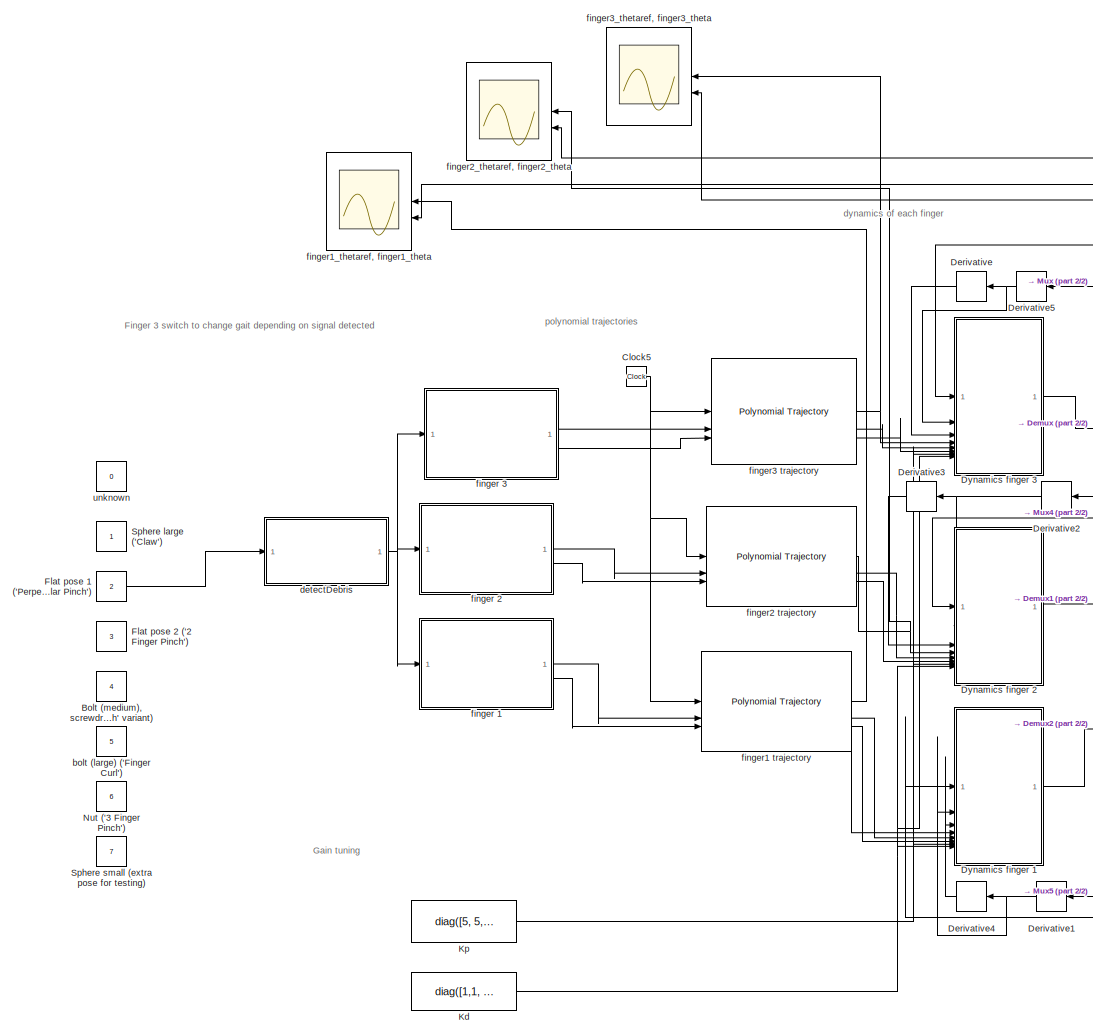
[diagram: root canvas - part 1/2, left side, full height]
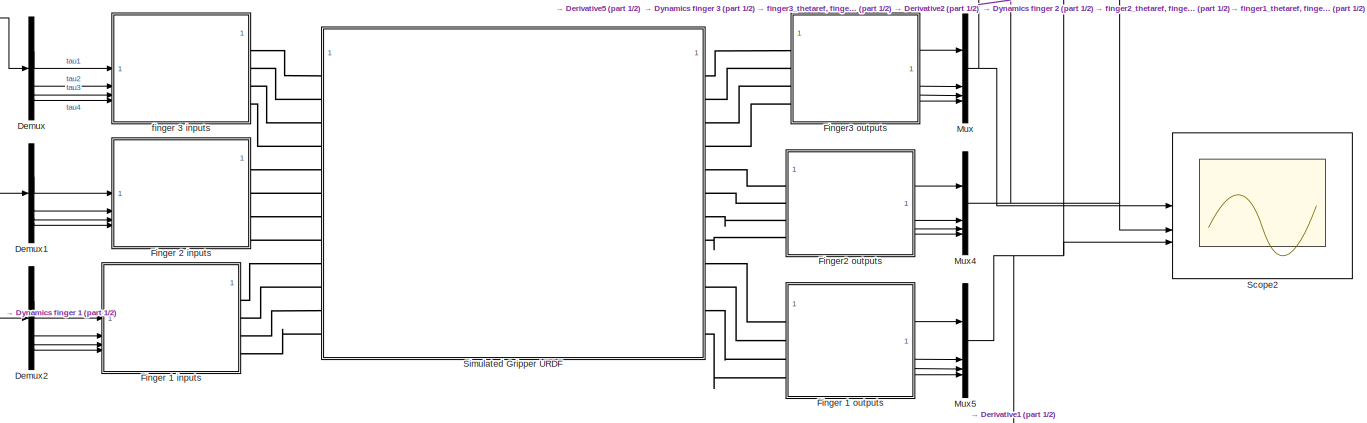
[diagram: root canvas - part 2/2, middle right region]
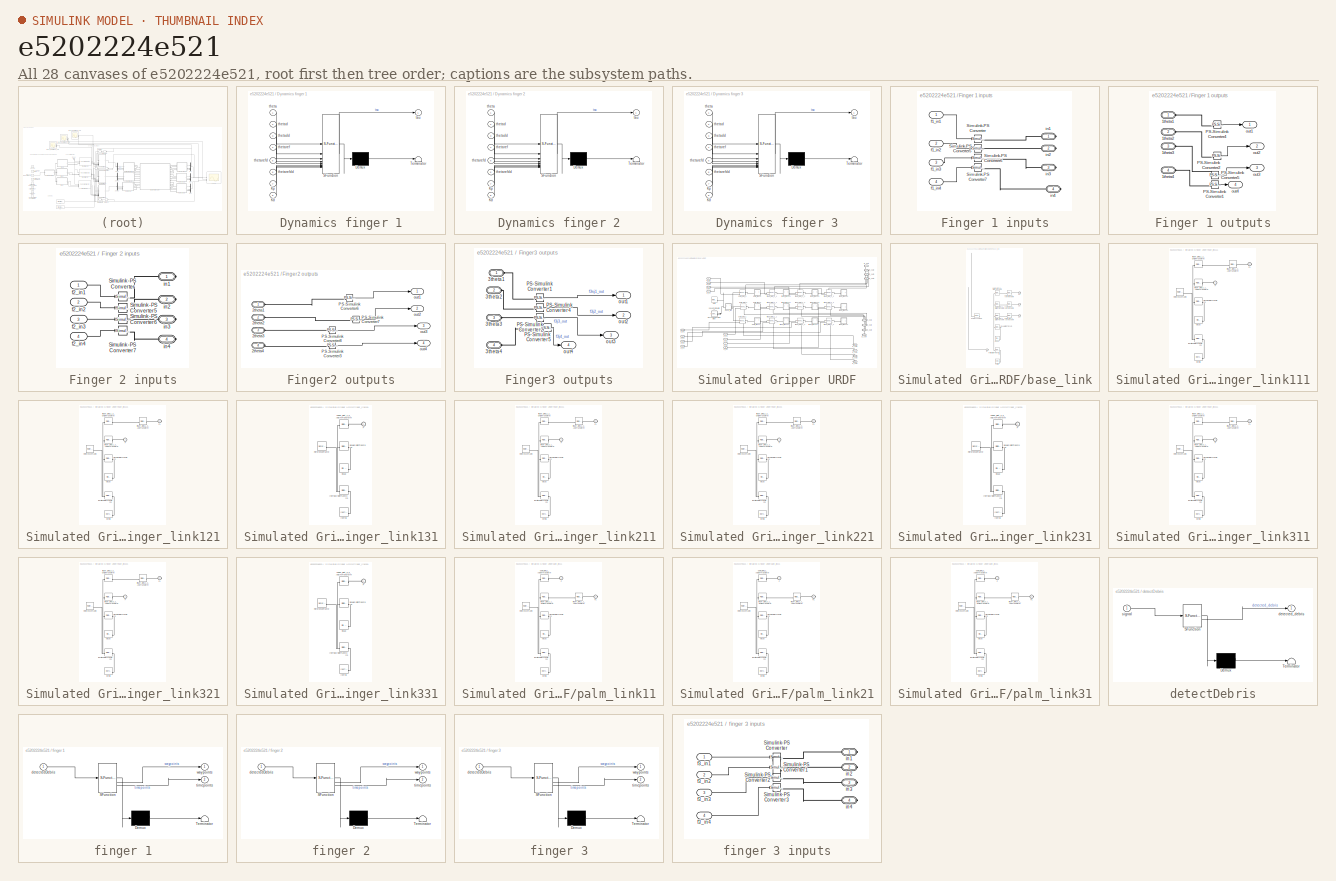
[diagram: thumbnail index - all 28 canvases of the model, root first then tree order]
MODEL slx_e5202224e521
KIND model
CONFIG AbsTol = auto
CONFIG EnableMultiTasking = on
CONFIG FixedStep = auto
CONFIG MaxStep = auto
CONFIG MinStep = auto
CONFIG RelTol = 1e-3
CONFIG SampleTimeConstraint = Unconstrained
CONFIG SolverName = daessc
CONFIG StartTime = 0.0
CONFIG StopTime = 10.0
BLOCK [Constant] Bolt (medium), screwdriver ('3 Finger Pinch' variant)
  Value = 4
BLOCK [Clock] Clock5
BLOCK [Demux] Demux
BLOCK [Demux] Demux1
BLOCK [Demux] Demux2
BLOCK [Derivative] Derivative
BLOCK [Derivative] Derivative1
BLOCK [Derivative] Derivative2
BLOCK [Derivative] Derivative3
BLOCK [Derivative] Derivative4
BLOCK [Derivative] Derivative5
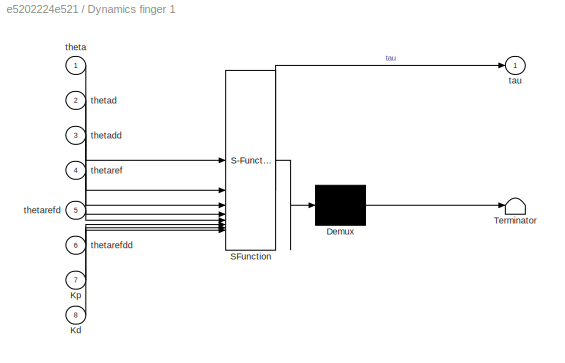
BLOCK [SubSystem] Dynamics finger 1
  ErrorFcn = Stateflow.Translate.translate
  PermitHierarchicalResolution = ExplicitOnly
  SFBlockType = MATLAB Function
  TreatAsAtomicUnit = on
BLOCK [Demux] Dynamics finger 1/ Demux 
  Outputs = 1
BLOCK [S-Function] Dynamics finger 1/ SFunction 
  EnableBusSupport = on
  FunctionName = sf_sfun
  PortCounts = [8 2]
  SFcnIsStateOwnerBlock = off
  SFunctionDeploymentMode = off
  Tag = Stateflow S-Function 6
BLOCK [Terminator] Dynamics finger 1/ Terminator 
BLOCK [Inport] Dynamics finger 1/Kd
  Port = 8
BLOCK [Inport] Dynamics finger 1/Kp
  Port = 7
BLOCK [Outport] Dynamics finger 1/tau
BLOCK [Inport] Dynamics finger 1/theta
BLOCK [Inport] Dynamics finger 1/thetad
  Port = 2
BLOCK [Inport] Dynamics finger 1/thetadd
  Port = 3
BLOCK [Inport] Dynamics finger 1/thetaref
  Port = 4
BLOCK [Inport] Dynamics finger 1/thetarefd
  Port = 5
BLOCK [Inport] Dynamics finger 1/thetarefdd
  Port = 6
BLOCK [SubSystem] Dynamics finger 2
  ErrorFcn = Stateflow.Translate.translate
  PermitHierarchicalResolution = ExplicitOnly
  SFBlockType = MATLAB Function
  TreatAsAtomicUnit = on
BLOCK [Demux] Dynamics finger 2/ Demux 
  Outputs = 1
BLOCK [S-Function] Dynamics finger 2/ SFunction 
  EnableBusSupport = on
  FunctionName = sf_sfun
  PortCounts = [8 2]
  SFcnIsStateOwnerBlock = off
  SFunctionDeploymentMode = off
  Tag = Stateflow S-Function 2
BLOCK [Terminator] Dynamics finger 2/ Terminator 
BLOCK [Inport] Dynamics finger 2/Kd
  Port = 8
BLOCK [Inport] Dynamics finger 2/Kp
  Port = 7
BLOCK [Outport] Dynamics finger 2/tau
BLOCK [Inport] Dynamics finger 2/theta
BLOCK [Inport] Dynamics finger 2/thetad
  Port = 2
BLOCK [Inport] Dynamics finger 2/thetadd
  Port = 3
BLOCK [Inport] Dynamics finger 2/thetaref
  Port = 4
BLOCK [Inport] Dynamics finger 2/thetarefd
  Port = 5
BLOCK [Inport] Dynamics finger 2/thetarefdd
  Port = 6
BLOCK [SubSystem] Dynamics finger 3
  ErrorFcn = Stateflow.Translate.translate
  PermitHierarchicalResolution = ExplicitOnly
  SFBlockType = MATLAB Function
  TreatAsAtomicUnit = on
BLOCK [Demux] Dynamics finger 3/ Demux 
  Outputs = 1
BLOCK [S-Function] Dynamics finger 3/ SFunction 
  EnableBusSupport = on
  FunctionName = sf_sfun
  PortCounts = [8 2]
  SFcnIsStateOwnerBlock = off
  SFunctionDeploymentMode = off
  Tag = Stateflow S-Function 3
BLOCK [Terminator] Dynamics finger 3/ Terminator 
BLOCK [Inport] Dynamics finger 3/Kd
  Port = 8
BLOCK [Inport] Dynamics finger 3/Kp
  Port = 7
BLOCK [Outport] Dynamics finger 3/tau
BLOCK [Inport] Dynamics finger 3/theta
BLOCK [Inport] Dynamics finger 3/thetad
  Port = 2
BLOCK [Inport] Dynamics finger 3/thetadd
  Port = 3
BLOCK [Inport] Dynamics finger 3/thetaref
  Port = 4
BLOCK [Inport] Dynamics finger 3/thetarefd
  Port = 5
BLOCK [Inport] Dynamics finger 3/thetarefdd
  Port = 6
BLOCK [SubSystem] Finger 1 inputs
BLOCK [Reference] Finger 1 inputs/Simulink-PS Converter  REF=nesl_utility/Simulink-PS
Converter
  SourceBlock = nesl_utility/Simulink-PS\nConverter
  SourceType = Simulink-PS\nConverter
BLOCK [Reference] Finger 1 inputs/Simulink-PS Converter5  REF=nesl_utility/Simulink-PS
Converter
  SourceBlock = nesl_utility/Simulink-PS\nConverter
  SourceType = Simulink-PS\nConverter
BLOCK [Reference] Finger 1 inputs/Simulink-PS Converter6  REF=nesl_utility/Simulink-PS
Converter
  SourceBlock = nesl_utility/Simulink-PS\nConverter
  SourceType = Simulink-PS\nConverter
BLOCK [Reference] Finger 1 inputs/Simulink-PS Converter7  REF=nesl_utility/Simulink-PS
Converter
  SourceBlock = nesl_utility/Simulink-PS\nConverter
  SourceType = Simulink-PS\nConverter
BLOCK [Inport] Finger 1 inputs/f1_in1
BLOCK [Inport] Finger 1 inputs/f1_in2
  Port = 2
BLOCK [Inport] Finger 1 inputs/f1_in3
  Port = 3
BLOCK [Inport] Finger 1 inputs/f1_in4
  Port = 4
BLOCK [PMIOPort] Finger 1 inputs/in1
  Side = Right
BLOCK [PMIOPort] Finger 1 inputs/in2
  Port = 2
  Side = Right
BLOCK [PMIOPort] Finger 1 inputs/in3
  Port = 3
  Side = Right
BLOCK [PMIOPort] Finger 1 inputs/in4
  Port = 4
  Side = Right
BLOCK [SubSystem] Finger 1 outputs
BLOCK [PMIOPort] Finger 1 outputs/1theta1
  Side = Left
BLOCK [PMIOPort] Finger 1 outputs/1theta2
  Port = 2
  Side = Left
BLOCK [PMIOPort] Finger 1 outputs/1theta3
  Port = 3
  Side = Left
BLOCK [PMIOPort] Finger 1 outputs/1theta4
  Port = 4
  Side = Left
BLOCK [Reference] Finger 1 outputs/PS-Simulink Converter1  REF=nesl_utility/PS-Simulink
Converter
  SourceBlock = nesl_utility/PS-Simulink\nConverter
  SourceType = PS-Simulink\nConverter
BLOCK [Reference] Finger 1 outputs/PS-Simulink Converter2  REF=nesl_utility/PS-Simulink
Converter
  SourceBlock = nesl_utility/PS-Simulink\nConverter
  SourceType = PS-Simulink\nConverter
BLOCK [Reference] Finger 1 outputs/PS-Simulink Converter4  REF=nesl_utility/PS-Simulink
Converter
  SourceBlock = nesl_utility/PS-Simulink\nConverter
  SourceType = PS-Simulink\nConverter
BLOCK [Reference] Finger 1 outputs/PS-Simulink Converter5  REF=nesl_utility/PS-Simulink
Converter
  SourceBlock = nesl_utility/PS-Simulink\nConverter
  SourceType = PS-Simulink\nConverter
BLOCK [Outport] Finger 1 outputs/out1
BLOCK [Outport] Finger 1 outputs/out2
  Port = 2
BLOCK [Outport] Finger 1 outputs/out3
  Port = 3
BLOCK [Outport] Finger 1 outputs/out4
  Port = 4
BLOCK [SubSystem] Finger 2 inputs
BLOCK [Reference] Finger 2 inputs/Simulink-PS Converter  REF=nesl_utility/Simulink-PS
Converter
  SourceBlock = nesl_utility/Simulink-PS\nConverter
  SourceType = Simulink-PS\nConverter
BLOCK [Reference] Finger 2 inputs/Simulink-PS Converter5  REF=nesl_utility/Simulink-PS
Converter
  SourceBlock = nesl_utility/Simulink-PS\nConverter
  SourceType = Simulink-PS\nConverter
BLOCK [Reference] Finger 2 inputs/Simulink-PS Converter6  REF=nesl_utility/Simulink-PS
Converter
  SourceBlock = nesl_utility/Simulink-PS\nConverter
  SourceType = Simulink-PS\nConverter
BLOCK [Reference] Finger 2 inputs/Simulink-PS Converter7  REF=nesl_utility/Simulink-PS
Converter
  SourceBlock = nesl_utility/Simulink-PS\nConverter
  SourceType = Simulink-PS\nConverter
BLOCK [Inport] Finger 2 inputs/f2_in1
BLOCK [Inport] Finger 2 inputs/f2_in2
  Port = 2
BLOCK [Inport] Finger 2 inputs/f2_in3
  Port = 3
BLOCK [Inport] Finger 2 inputs/f2_in4
  Port = 4
BLOCK [PMIOPort] Finger 2 inputs/in1
  Side = Right
BLOCK [PMIOPort] Finger 2 inputs/in2
  Port = 2
  Side = Right
BLOCK [PMIOPort] Finger 2 inputs/in3
  Port = 3
  Side = Right
BLOCK [PMIOPort] Finger 2 inputs/in4
  Port = 4
  Side = Right
BLOCK [SubSystem] Finger2 outputs
BLOCK [PMIOPort] Finger2 outputs/2theta1
  Side = Left
BLOCK [PMIOPort] Finger2 outputs/2theta2
  Port = 2
  Side = Left
BLOCK [PMIOPort] Finger2 outputs/2theta3
  Port = 3
  Side = Left
BLOCK [PMIOPort] Finger2 outputs/2theta4
  Port = 4
  Side = Left
BLOCK [Reference] Finger2 outputs/PS-Simulink Converter3  REF=nesl_utility/PS-Simulink
Converter
  SourceBlock = nesl_utility/PS-Simulink\nConverter
  SourceType = PS-Simulink\nConverter
BLOCK [Reference] Finger2 outputs/PS-Simulink Converter6  REF=nesl_utility/PS-Simulink
Converter
  SourceBlock = nesl_utility/PS-Simulink\nConverter
  SourceType = PS-Simulink\nConverter
BLOCK [Reference] Finger2 outputs/PS-Simulink Converter7  REF=nesl_utility/PS-Simulink
Converter
  SourceBlock = nesl_utility/PS-Simulink\nConverter
  SourceType = PS-Simulink\nConverter
BLOCK [Reference] Finger2 outputs/PS-Simulink Converter8  REF=nesl_utility/PS-Simulink
Converter
  SourceBlock = nesl_utility/PS-Simulink\nConverter
  SourceType = PS-Simulink\nConverter
BLOCK [Outport] Finger2 outputs/out1
BLOCK [Outport] Finger2 outputs/out2
  Port = 2
BLOCK [Outport] Finger2 outputs/out3
  Port = 3
BLOCK [Outport] Finger2 outputs/out4
  Port = 4
BLOCK [SubSystem] Finger3 outputs
BLOCK [PMIOPort] Finger3 outputs/3theta1
  Side = Left
BLOCK [PMIOPort] Finger3 outputs/3theta2
  Port = 2
  Side = Left
BLOCK [PMIOPort] Finger3 outputs/3theta3
  Port = 3
  Side = Left
BLOCK [PMIOPort] Finger3 outputs/3theta4
  Port = 4
  Side = Left
BLOCK [Reference] Finger3 outputs/PS-Simulink Converter1  REF=nesl_utility/PS-Simulink
Converter
  SourceBlock = nesl_utility/PS-Simulink\nConverter
  SourceType = PS-Simulink\nConverter
BLOCK [Reference] Finger3 outputs/PS-Simulink Converter2  REF=nesl_utility/PS-Simulink
Converter
  SourceBlock = nesl_utility/PS-Simulink\nConverter
  SourceType = PS-Simulink\nConverter
BLOCK [Reference] Finger3 outputs/PS-Simulink Converter4  REF=nesl_utility/PS-Simulink
Converter
  SourceBlock = nesl_utility/PS-Simulink\nConverter
  SourceType = PS-Simulink\nConverter
BLOCK [Reference] Finger3 outputs/PS-Simulink Converter5  REF=nesl_utility/PS-Simulink
Converter
  SourceBlock = nesl_utility/PS-Simulink\nConverter
  SourceType = PS-Simulink\nConverter
BLOCK [Outport] Finger3 outputs/out1
BLOCK [Outport] Finger3 outputs/out2
  Port = 2
BLOCK [Outport] Finger3 outputs/out3
  Port = 3
BLOCK [Outport] Finger3 outputs/out4
  Port = 4
BLOCK [Constant] Flat pose 1 ('Perpendcular Pinch')
  Value = 2
BLOCK [Constant] Flat pose 2 ('2 Finger Pinch')
  Value = 3
BLOCK [Constant] Kd
  Value = diag([1,1, 1, 1])
BLOCK [Constant] Kp
  Value = diag([5, 5, 5, 5])
BLOCK [Mux] Mux
  DisplayOption = bar
BLOCK [Mux] Mux4
  DisplayOption = bar
BLOCK [Mux] Mux5
  DisplayOption = bar
BLOCK [Constant] Nut ('3 Finger Pinch')
  Value = 6
BLOCK [Scope] Scope2
  Floating = off
  NumInputPorts = 3
  ScopeSpecificationString = Simulink.scopes.TimeScopeBlockCfg('CurrentConfiguration', extmgr.ConfigurationSet(extmgr.Configuration('Core','General UI',true),extmgr.Configuration('Core','Source UI',true),extmgr.Configuration('Sources','WiredSimulink',true,'DataLoggingVariableName','ScopeData2'),extmgr.Configuration('Visuals','Time Domain',true,'SerializedDisplays',{struct('MinYLimReal','-0.42592','MaxYLimReal','1.79902','YLab...<+3552ch>
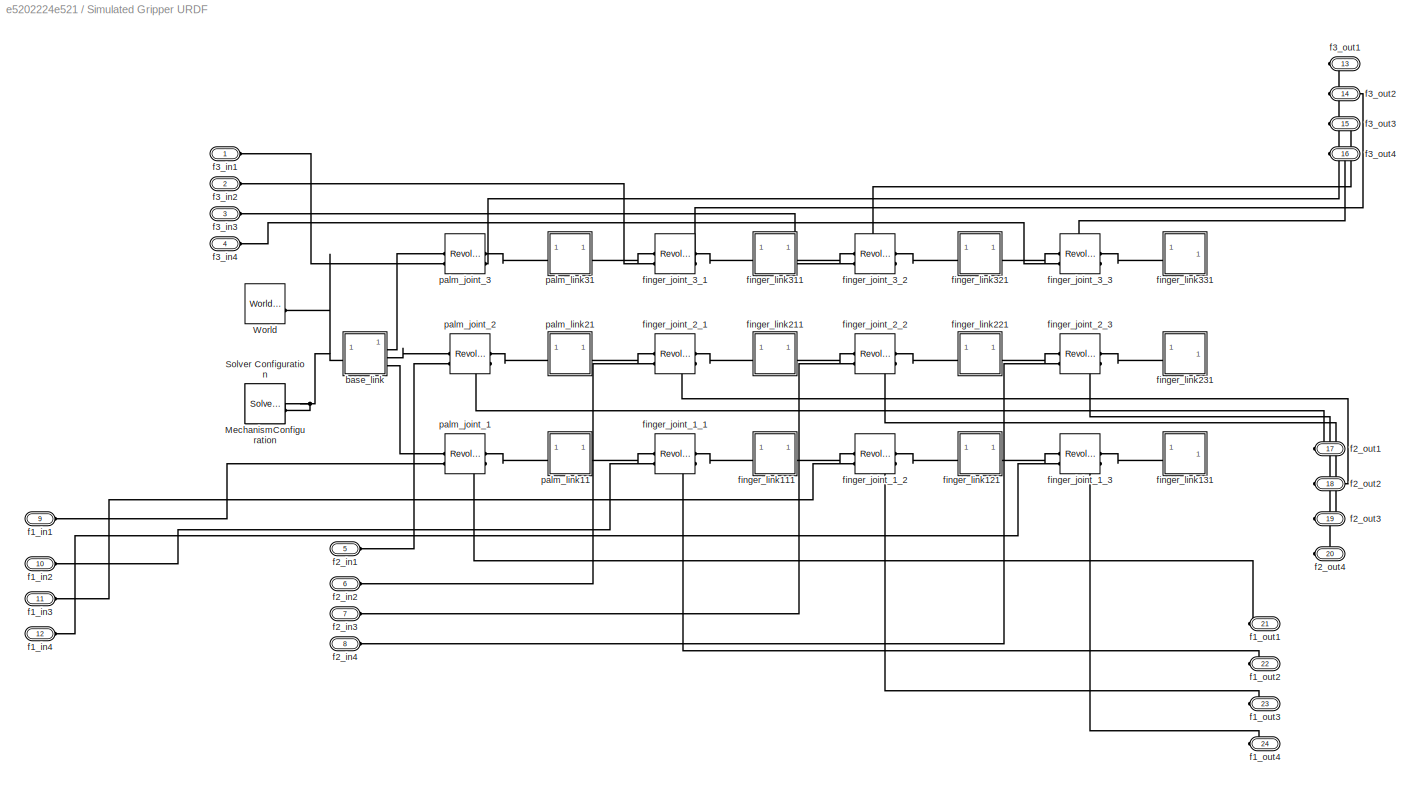
BLOCK [SubSystem] Simulated Gripper URDF
  NameLocation = top
BLOCK [Reference] Simulated Gripper URDF/MechanismConfiguration  REF=sm_lib/Utilities/Mechanism
Configuration
  SourceBlock = sm_lib/Utilities/Mechanism\nConfiguration
  SourceType = Mechanism\nConfiguration
BLOCK [Reference] Simulated Gripper URDF/Solver Configuration  REF=nesl_utility/Solver
Configuration
  SourceBlock = nesl_utility/Solver\nConfiguration
  SourceType = Solver\nConfiguration
BLOCK [Reference] Simulated Gripper URDF/World  REF=sm_lib/Frames and
Transforms/World Frame
  SourceBlock = sm_lib/Frames and\nTransforms/World Frame
  SourceType = World Frame
BLOCK [SubSystem] Simulated Gripper URDF/base_link
BLOCK [PMIOPort] Simulated Gripper URDF/base_link/F
  Side = Left
BLOCK [PMIOPort] Simulated Gripper URDF/base_link/F1
  Port = 4
  Side = Right
BLOCK [PMIOPort] Simulated Gripper URDF/base_link/F2
  Port = 3
  Side = Right
BLOCK [PMIOPort] Simulated Gripper URDF/base_link/F3
  Port = 2
  Side = Right
BLOCK [Reference] Simulated Gripper URDF/base_link/Inertia  REF=sm_lib/Body Elements/Inertia
  SourceBlock = sm_lib/Body Elements/Inertia
  SourceType = Inertia
BLOCK [Reference] Simulated Gripper URDF/base_link/InertiaOriginTransform  REF=sm_lib/Frames and
Transforms/Rigid
Transform
  SourceBlock = sm_lib/Frames and\nTransforms/Rigid\nTransform
  SourceType = Rigid\nTransform
BLOCK [Reference] Simulated Gripper URDF/base_link/ReferenceFrame  REF=sm_lib/Frames and
Transforms/Reference
Frame
  SourceBlock = sm_lib/Frames and\nTransforms/Reference\nFrame
  SourceType = Reference\nFrame
BLOCK [Reference] Simulated Gripper URDF/base_link/Visual  REF=sm_lib/Body Elements/File Solid
  SourceBlock = sm_lib/Body Elements/File Solid
  SourceType = File Solid
BLOCK [Reference] Simulated Gripper URDF/base_link/VisualOriginTransform  REF=sm_lib/Frames and
Transforms/Rigid
Transform
  SourceBlock = sm_lib/Frames and\nTransforms/Rigid\nTransform
  SourceType = Rigid\nTransform
BLOCK [Reference] Simulated Gripper URDF/base_link/palm_joint_1_AxisTransform  REF=sm_lib/Frames and
Transforms/Rigid
Transform
  SourceBlock = sm_lib/Frames and\nTransforms/Rigid\nTransform
  SourceType = Rigid\nTransform
BLOCK [Reference] Simulated Gripper URDF/base_link/palm_joint_1_OriginTransform  REF=sm_lib/Frames and
Transforms/Rigid
Transform
  SourceBlock = sm_lib/Frames and\nTransforms/Rigid\nTransform
  SourceType = Rigid\nTransform
BLOCK [Reference] Simulated Gripper URDF/base_link/palm_joint_2_AxisTransform  REF=sm_lib/Frames and
Transforms/Rigid
Transform
  SourceBlock = sm_lib/Frames and\nTransforms/Rigid\nTransform
  SourceType = Rigid\nTransform
BLOCK [Reference] Simulated Gripper URDF/base_link/palm_joint_2_OriginTransform  REF=sm_lib/Frames and
Transforms/Rigid
Transform
  SourceBlock = sm_lib/Frames and\nTransforms/Rigid\nTransform
  SourceType = Rigid\nTransform
BLOCK [Reference] Simulated Gripper URDF/base_link/palm_joint_3_AxisTransform  REF=sm_lib/Frames and
Transforms/Rigid
Transform
  SourceBlock = sm_lib/Frames and\nTransforms/Rigid\nTransform
  SourceType = Rigid\nTransform
BLOCK [Reference] Simulated Gripper URDF/base_link/palm_joint_3_OriginTransform  REF=sm_lib/Frames and
Transforms/Rigid
Transform
  SourceBlock = sm_lib/Frames and\nTransforms/Rigid\nTransform
  SourceType = Rigid\nTransform
BLOCK [PMIOPort] Simulated Gripper URDF/f1_in1
  Port = 9
  Side = Left
BLOCK [PMIOPort] Simulated Gripper URDF/f1_in2
  Port = 10
  Side = Left
BLOCK [PMIOPort] Simulated Gripper URDF/f1_in3
  Port = 11
  Side = Left
BLOCK [PMIOPort] Simulated Gripper URDF/f1_in4
  Port = 12
  Side = Left
BLOCK [PMIOPort] Simulated Gripper URDF/f1_out1
  Port = 21
  Side = Right
BLOCK [PMIOPort] Simulated Gripper URDF/f1_out2
  Port = 22
  Side = Right
BLOCK [PMIOPort] Simulated Gripper URDF/f1_out3
  Port = 23
  Side = Right
BLOCK [PMIOPort] Simulated Gripper URDF/f1_out4
  Port = 24
  Side = Right
BLOCK [PMIOPort] Simulated Gripper URDF/f2_in1
  Port = 5
  Side = Left
BLOCK [PMIOPort] Simulated Gripper URDF/f2_in2
  Port = 6
  Side = Left
BLOCK [PMIOPort] Simulated Gripper URDF/f2_in3
  Port = 7
  Side = Left
BLOCK [PMIOPort] Simulated Gripper URDF/f2_in4
  Port = 8
  Side = Left
BLOCK [PMIOPort] Simulated Gripper URDF/f2_out1
  Port = 17
  Side = Right
BLOCK [PMIOPort] Simulated Gripper URDF/f2_out2
  Port = 18
  Side = Right
BLOCK [PMIOPort] Simulated Gripper URDF/f2_out3
  Port = 19
  Side = Right
BLOCK [PMIOPort] Simulated Gripper URDF/f2_out4
  Port = 20
  Side = Right
BLOCK [PMIOPort] Simulated Gripper URDF/f3_in1
  Side = Left
BLOCK [PMIOPort] Simulated Gripper URDF/f3_in2
  Port = 2
  Side = Left
BLOCK [PMIOPort] Simulated Gripper URDF/f3_in3
  Port = 3
  Side = Left
BLOCK [PMIOPort] Simulated Gripper URDF/f3_in4
  Port = 4
  Side = Left
BLOCK [PMIOPort] Simulated Gripper URDF/f3_out1
  Port = 13
  Side = Right
BLOCK [PMIOPort] Simulated Gripper URDF/f3_out2
  Port = 14
  Side = Right
BLOCK [PMIOPort] Simulated Gripper URDF/f3_out3
  Port = 15
  Side = Right
BLOCK [PMIOPort] Simulated Gripper URDF/f3_out4
  Port = 16
  Side = Right
BLOCK [Reference] Simulated Gripper URDF/finger_joint_1_1  REF=sm_lib/Joints/Revolute Joint
  SourceBlock = sm_lib/Joints/Revolute Joint
  SourceType = Revolute Joint
BLOCK [Reference] Simulated Gripper URDF/finger_joint_1_2  REF=sm_lib/Joints/Revolute Joint
  SourceBlock = sm_lib/Joints/Revolute Joint
  SourceType = Revolute Joint
BLOCK [Reference] Simulated Gripper URDF/finger_joint_1_3  REF=sm_lib/Joints/Revolute Joint
  SourceBlock = sm_lib/Joints/Revolute Joint
  SourceType = Revolute Joint
BLOCK [Reference] Simulated Gripper URDF/finger_joint_2_1  REF=sm_lib/Joints/Revolute Joint
  SourceBlock = sm_lib/Joints/Revolute Joint
  SourceType = Revolute Joint
BLOCK [Reference] Simulated Gripper URDF/finger_joint_2_2  REF=sm_lib/Joints/Revolute Joint
  SourceBlock = sm_lib/Joints/Revolute Joint
  SourceType = Revolute Joint
BLOCK [Reference] Simulated Gripper URDF/finger_joint_2_3  REF=sm_lib/Joints/Revolute Joint
  SourceBlock = sm_lib/Joints/Revolute Joint
  SourceType = Revolute Joint
BLOCK [Reference] Simulated Gripper URDF/finger_joint_3_1  REF=sm_lib/Joints/Revolute Joint
  SourceBlock = sm_lib/Joints/Revolute Joint
  SourceType = Revolute Joint
BLOCK [Reference] Simulated Gripper URDF/finger_joint_3_2  REF=sm_lib/Joints/Revolute Joint
  SourceBlock = sm_lib/Joints/Revolute Joint
  SourceType = Revolute Joint
BLOCK [Reference] Simulated Gripper URDF/finger_joint_3_3  REF=sm_lib/Joints/Revolute Joint
  SourceBlock = sm_lib/Joints/Revolute Joint
  SourceType = Revolute Joint
BLOCK [SubSystem] Simulated Gripper URDF/finger_link111
BLOCK [PMIOPort] Simulated Gripper URDF/finger_link111/F
  Side = Left
BLOCK [PMIOPort] Simulated Gripper URDF/finger_link111/F1
  Port = 2
  Side = Right
BLOCK [Reference] Simulated Gripper URDF/finger_link111/Inertia  REF=sm_lib/Body Elements/Inertia
  SourceBlock = sm_lib/Body Elements/Inertia
  SourceType = Inertia
BLOCK [Reference] Simulated Gripper URDF/finger_link111/InertiaOriginTransform  REF=sm_lib/Frames and
Transforms/Rigid
Transform
  SourceBlock = sm_lib/Frames and\nTransforms/Rigid\nTransform
  SourceType = Rigid\nTransform
BLOCK [Reference] Simulated Gripper URDF/finger_link111/ReferenceFrame  REF=sm_lib/Frames and
Transforms/Reference
Frame
  SourceBlock = sm_lib/Frames and\nTransforms/Reference\nFrame
  SourceType = Reference\nFrame
BLOCK [Reference] Simulated Gripper URDF/finger_link111/Visual  REF=sm_lib/Body Elements/File Solid
  SourceBlock = sm_lib/Body Elements/File Solid
  SourceType = File Solid
BLOCK [Reference] Simulated Gripper URDF/finger_link111/VisualOriginTransform  REF=sm_lib/Frames and
Transforms/Rigid
Transform
  SourceBlock = sm_lib/Frames and\nTransforms/Rigid\nTransform
  SourceType = Rigid\nTransform
BLOCK [Reference] Simulated Gripper URDF/finger_link111/finger_joint_1_1_AxisInvTransform  REF=sm_lib/Frames and
Transforms/Rigid
Transform
  SourceBlock = sm_lib/Frames and\nTransforms/Rigid\nTransform
  SourceType = Rigid\nTransform
BLOCK [Reference] Simulated Gripper URDF/finger_link111/finger_joint_1_2_AxisTransform  REF=sm_lib/Frames and
Transforms/Rigid
Transform
  SourceBlock = sm_lib/Frames and\nTransforms/Rigid\nTransform
  SourceType = Rigid\nTransform
BLOCK [Reference] Simulated Gripper URDF/finger_link111/finger_joint_1_2_OriginTransform  REF=sm_lib/Frames and
Transforms/Rigid
Transform
  SourceBlock = sm_lib/Frames and\nTransforms/Rigid\nTransform
  SourceType = Rigid\nTransform
BLOCK [SubSystem] Simulated Gripper URDF/finger_link121
BLOCK [PMIOPort] Simulated Gripper URDF/finger_link121/F
  Side = Left
BLOCK [PMIOPort] Simulated Gripper URDF/finger_link121/F1
  Port = 2
  Side = Right
BLOCK [Reference] Simulated Gripper URDF/finger_link121/Inertia  REF=sm_lib/Body Elements/Inertia
  SourceBlock = sm_lib/Body Elements/Inertia
  SourceType = Inertia
BLOCK [Reference] Simulated Gripper URDF/finger_link121/InertiaOriginTransform  REF=sm_lib/Frames and
Transforms/Rigid
Transform
  SourceBlock = sm_lib/Frames and\nTransforms/Rigid\nTransform
  SourceType = Rigid\nTransform
BLOCK [Reference] Simulated Gripper URDF/finger_link121/ReferenceFrame  REF=sm_lib/Frames and
Transforms/Reference
Frame
  SourceBlock = sm_lib/Frames and\nTransforms/Reference\nFrame
  SourceType = Reference\nFrame
BLOCK [Reference] Simulated Gripper URDF/finger_link121/Visual  REF=sm_lib/Body Elements/File Solid
  SourceBlock = sm_lib/Body Elements/File Solid
  SourceType = File Solid
BLOCK [Reference] Simulated Gripper URDF/finger_link121/VisualOriginTransform  REF=sm_lib/Frames and
Transforms/Rigid
Transform
  SourceBlock = sm_lib/Frames and\nTransforms/Rigid\nTransform
  SourceType = Rigid\nTransform
BLOCK [Reference] Simulated Gripper URDF/finger_link121/finger_joint_1_2_AxisInvTransform  REF=sm_lib/Frames and
Transforms/Rigid
Transform
  SourceBlock = sm_lib/Frames and\nTransforms/Rigid\nTransform
  SourceType = Rigid\nTransform
BLOCK [Reference] Simulated Gripper URDF/finger_link121/finger_joint_1_3_AxisTransform  REF=sm_lib/Frames and
Transforms/Rigid
Transform
  SourceBlock = sm_lib/Frames and\nTransforms/Rigid\nTransform
  SourceType = Rigid\nTransform
BLOCK [Reference] Simulated Gripper URDF/finger_link121/finger_joint_1_3_OriginTransform  REF=sm_lib/Frames and
Transforms/Rigid
Transform
  SourceBlock = sm_lib/Frames and\nTransforms/Rigid\nTransform
  SourceType = Rigid\nTransform
BLOCK [SubSystem] Simulated Gripper URDF/finger_link131
BLOCK [PMIOPort] Simulated Gripper URDF/finger_link131/F
  Side = Left
BLOCK [Reference] Simulated Gripper URDF/finger_link131/Inertia  REF=sm_lib/Body Elements/Inertia
  SourceBlock = sm_lib/Body Elements/Inertia
  SourceType = Inertia
BLOCK [Reference] Simulated Gripper URDF/finger_link131/InertiaOriginTransform  REF=sm_lib/Frames and
Transforms/Rigid
Transform
  SourceBlock = sm_lib/Frames and\nTransforms/Rigid\nTransform
  SourceType = Rigid\nTransform
BLOCK [Reference] Simulated Gripper URDF/finger_link131/ReferenceFrame  REF=sm_lib/Frames and
Transforms/Reference
Frame
  SourceBlock = sm_lib/Frames and\nTransforms/Reference\nFrame
  SourceType = Reference\nFrame
BLOCK [Reference] Simulated Gripper URDF/finger_link131/Visual  REF=sm_lib/Body Elements/File Solid
  SourceBlock = sm_lib/Body Elements/File Solid
  SourceType = File Solid
BLOCK [Reference] Simulated Gripper URDF/finger_link131/VisualOriginTransform  REF=sm_lib/Frames and
Transforms/Rigid
Transform
  SourceBlock = sm_lib/Frames and\nTransforms/Rigid\nTransform
  SourceType = Rigid\nTransform
BLOCK [Reference] Simulated Gripper URDF/finger_link131/finger_joint_1_3_AxisInvTransform  REF=sm_lib/Frames and
Transforms/Rigid
Transform
  SourceBlock = sm_lib/Frames and\nTransforms/Rigid\nTransform
  SourceType = Rigid\nTransform
BLOCK [SubSystem] Simulated Gripper URDF/finger_link211
BLOCK [PMIOPort] Simulated Gripper URDF/finger_link211/F
  Side = Left
BLOCK [PMIOPort] Simulated Gripper URDF/finger_link211/F1
  Port = 2
  Side = Right
BLOCK [Reference] Simulated Gripper URDF/finger_link211/Inertia  REF=sm_lib/Body Elements/Inertia
  SourceBlock = sm_lib/Body Elements/Inertia
  SourceType = Inertia
BLOCK [Reference] Simulated Gripper URDF/finger_link211/InertiaOriginTransform  REF=sm_lib/Frames and
Transforms/Rigid
Transform
  SourceBlock = sm_lib/Frames and\nTransforms/Rigid\nTransform
  SourceType = Rigid\nTransform
BLOCK [Reference] Simulated Gripper URDF/finger_link211/ReferenceFrame  REF=sm_lib/Frames and
Transforms/Reference
Frame
  SourceBlock = sm_lib/Frames and\nTransforms/Reference\nFrame
  SourceType = Reference\nFrame
BLOCK [Reference] Simulated Gripper URDF/finger_link211/Visual  REF=sm_lib/Body Elements/File Solid
  SourceBlock = sm_lib/Body Elements/File Solid
  SourceType = File Solid
BLOCK [Reference] Simulated Gripper URDF/finger_link211/VisualOriginTransform  REF=sm_lib/Frames and
Transforms/Rigid
Transform
  SourceBlock = sm_lib/Frames and\nTransforms/Rigid\nTransform
  SourceType = Rigid\nTransform
BLOCK [Reference] Simulated Gripper URDF/finger_link211/finger_joint_2_1_AxisInvTransform  REF=sm_lib/Frames and
Transforms/Rigid
Transform
  SourceBlock = sm_lib/Frames and\nTransforms/Rigid\nTransform
  SourceType = Rigid\nTransform
BLOCK [Reference] Simulated Gripper URDF/finger_link211/finger_joint_2_2_AxisTransform  REF=sm_lib/Frames and
Transforms/Rigid
Transform
  SourceBlock = sm_lib/Frames and\nTransforms/Rigid\nTransform
  SourceType = Rigid\nTransform
BLOCK [Reference] Simulated Gripper URDF/finger_link211/finger_joint_2_2_OriginTransform  REF=sm_lib/Frames and
Transforms/Rigid
Transform
  SourceBlock = sm_lib/Frames and\nTransforms/Rigid\nTransform
  SourceType = Rigid\nTransform
BLOCK [SubSystem] Simulated Gripper URDF/finger_link221
BLOCK [PMIOPort] Simulated Gripper URDF/finger_link221/F
  Side = Left
BLOCK [PMIOPort] Simulated Gripper URDF/finger_link221/F1
  Port = 2
  Side = Right
BLOCK [Reference] Simulated Gripper URDF/finger_link221/Inertia  REF=sm_lib/Body Elements/Inertia
  SourceBlock = sm_lib/Body Elements/Inertia
  SourceType = Inertia
BLOCK [Reference] Simulated Gripper URDF/finger_link221/InertiaOriginTransform  REF=sm_lib/Frames and
Transforms/Rigid
Transform
  SourceBlock = sm_lib/Frames and\nTransforms/Rigid\nTransform
  SourceType = Rigid\nTransform
BLOCK [Reference] Simulated Gripper URDF/finger_link221/ReferenceFrame  REF=sm_lib/Frames and
Transforms/Reference
Frame
  SourceBlock = sm_lib/Frames and\nTransforms/Reference\nFrame
  SourceType = Reference\nFrame
BLOCK [Reference] Simulated Gripper URDF/finger_link221/Visual  REF=sm_lib/Body Elements/File Solid
  SourceBlock = sm_lib/Body Elements/File Solid
  SourceType = File Solid
BLOCK [Reference] Simulated Gripper URDF/finger_link221/VisualOriginTransform  REF=sm_lib/Frames and
Transforms/Rigid
Transform
  SourceBlock = sm_lib/Frames and\nTransforms/Rigid\nTransform
  SourceType = Rigid\nTransform
BLOCK [Reference] Simulated Gripper URDF/finger_link221/finger_joint_2_2_AxisInvTransform  REF=sm_lib/Frames and
Transforms/Rigid
Transform
  SourceBlock = sm_lib/Frames and\nTransforms/Rigid\nTransform
  SourceType = Rigid\nTransform
BLOCK [Reference] Simulated Gripper URDF/finger_link221/finger_joint_2_3_AxisTransform  REF=sm_lib/Frames and
Transforms/Rigid
Transform
  SourceBlock = sm_lib/Frames and\nTransforms/Rigid\nTransform
  SourceType = Rigid\nTransform
BLOCK [Reference] Simulated Gripper URDF/finger_link221/finger_joint_2_3_OriginTransform  REF=sm_lib/Frames and
Transforms/Rigid
Transform
  SourceBlock = sm_lib/Frames and\nTransforms/Rigid\nTransform
  SourceType = Rigid\nTransform
BLOCK [SubSystem] Simulated Gripper URDF/finger_link231
BLOCK [PMIOPort] Simulated Gripper URDF/finger_link231/F
  Side = Left
BLOCK [Reference] Simulated Gripper URDF/finger_link231/Inertia  REF=sm_lib/Body Elements/Inertia
  SourceBlock = sm_lib/Body Elements/Inertia
  SourceType = Inertia
BLOCK [Reference] Simulated Gripper URDF/finger_link231/InertiaOriginTransform  REF=sm_lib/Frames and
Transforms/Rigid
Transform
  SourceBlock = sm_lib/Frames and\nTransforms/Rigid\nTransform
  SourceType = Rigid\nTransform
BLOCK [Reference] Simulated Gripper URDF/finger_link231/ReferenceFrame  REF=sm_lib/Frames and
Transforms/Reference
Frame
  SourceBlock = sm_lib/Frames and\nTransforms/Reference\nFrame
  SourceType = Reference\nFrame
BLOCK [Reference] Simulated Gripper URDF/finger_link231/Visual  REF=sm_lib/Body Elements/File Solid
  SourceBlock = sm_lib/Body Elements/File Solid
  SourceType = File Solid
BLOCK [Reference] Simulated Gripper URDF/finger_link231/VisualOriginTransform  REF=sm_lib/Frames and
Transforms/Rigid
Transform
  SourceBlock = sm_lib/Frames and\nTransforms/Rigid\nTransform
  SourceType = Rigid\nTransform
BLOCK [Reference] Simulated Gripper URDF/finger_link231/finger_joint_2_3_AxisInvTransform  REF=sm_lib/Frames and
Transforms/Rigid
Transform
  SourceBlock = sm_lib/Frames and\nTransforms/Rigid\nTransform
  SourceType = Rigid\nTransform
BLOCK [SubSystem] Simulated Gripper URDF/finger_link311
BLOCK [PMIOPort] Simulated Gripper URDF/finger_link311/F
  Side = Left
BLOCK [PMIOPort] Simulated Gripper URDF/finger_link311/F1
  Port = 2
  Side = Right
BLOCK [Reference] Simulated Gripper URDF/finger_link311/Inertia  REF=sm_lib/Body Elements/Inertia
  SourceBlock = sm_lib/Body Elements/Inertia
  SourceType = Inertia
BLOCK [Reference] Simulated Gripper URDF/finger_link311/InertiaOriginTransform  REF=sm_lib/Frames and
Transforms/Rigid
Transform
  SourceBlock = sm_lib/Frames and\nTransforms/Rigid\nTransform
  SourceType = Rigid\nTransform
BLOCK [Reference] Simulated Gripper URDF/finger_link311/ReferenceFrame  REF=sm_lib/Frames and
Transforms/Reference
Frame
  SourceBlock = sm_lib/Frames and\nTransforms/Reference\nFrame
  SourceType = Reference\nFrame
BLOCK [Reference] Simulated Gripper URDF/finger_link311/Visual  REF=sm_lib/Body Elements/File Solid
  SourceBlock = sm_lib/Body Elements/File Solid
  SourceType = File Solid
BLOCK [Reference] Simulated Gripper URDF/finger_link311/VisualOriginTransform  REF=sm_lib/Frames and
Transforms/Rigid
Transform
  SourceBlock = sm_lib/Frames and\nTransforms/Rigid\nTransform
  SourceType = Rigid\nTransform
BLOCK [Reference] Simulated Gripper URDF/finger_link311/finger_joint_3_1_AxisInvTransform  REF=sm_lib/Frames and
Transforms/Rigid
Transform
  SourceBlock = sm_lib/Frames and\nTransforms/Rigid\nTransform
  SourceType = Rigid\nTransform
BLOCK [Reference] Simulated Gripper URDF/finger_link311/finger_joint_3_2_AxisTransform  REF=sm_lib/Frames and
Transforms/Rigid
Transform
  SourceBlock = sm_lib/Frames and\nTransforms/Rigid\nTransform
  SourceType = Rigid\nTransform
BLOCK [Reference] Simulated Gripper URDF/finger_link311/finger_joint_3_2_OriginTransform  REF=sm_lib/Frames and
Transforms/Rigid
Transform
  SourceBlock = sm_lib/Frames and\nTransforms/Rigid\nTransform
  SourceType = Rigid\nTransform
BLOCK [SubSystem] Simulated Gripper URDF/finger_link321
BLOCK [PMIOPort] Simulated Gripper URDF/finger_link321/F
  Side = Left
BLOCK [PMIOPort] Simulated Gripper URDF/finger_link321/F1
  Port = 2
  Side = Right
BLOCK [Reference] Simulated Gripper URDF/finger_link321/Inertia  REF=sm_lib/Body Elements/Inertia
  SourceBlock = sm_lib/Body Elements/Inertia
  SourceType = Inertia
BLOCK [Reference] Simulated Gripper URDF/finger_link321/InertiaOriginTransform  REF=sm_lib/Frames and
Transforms/Rigid
Transform
  SourceBlock = sm_lib/Frames and\nTransforms/Rigid\nTransform
  SourceType = Rigid\nTransform
BLOCK [Reference] Simulated Gripper URDF/finger_link321/ReferenceFrame  REF=sm_lib/Frames and
Transforms/Reference
Frame
  SourceBlock = sm_lib/Frames and\nTransforms/Reference\nFrame
  SourceType = Reference\nFrame
BLOCK [Reference] Simulated Gripper URDF/finger_link321/Visual  REF=sm_lib/Body Elements/File Solid
  SourceBlock = sm_lib/Body Elements/File Solid
  SourceType = File Solid
BLOCK [Reference] Simulated Gripper URDF/finger_link321/VisualOriginTransform  REF=sm_lib/Frames and
Transforms/Rigid
Transform
  SourceBlock = sm_lib/Frames and\nTransforms/Rigid\nTransform
  SourceType = Rigid\nTransform
BLOCK [Reference] Simulated Gripper URDF/finger_link321/finger_joint_3_2_AxisInvTransform  REF=sm_lib/Frames and
Transforms/Rigid
Transform
  SourceBlock = sm_lib/Frames and\nTransforms/Rigid\nTransform
  SourceType = Rigid\nTransform
BLOCK [Reference] Simulated Gripper URDF/finger_link321/finger_joint_3_3_AxisTransform  REF=sm_lib/Frames and
Transforms/Rigid
Transform
  SourceBlock = sm_lib/Frames and\nTransforms/Rigid\nTransform
  SourceType = Rigid\nTransform
BLOCK [Reference] Simulated Gripper URDF/finger_link321/finger_joint_3_3_OriginTransform  REF=sm_lib/Frames and
Transforms/Rigid
Transform
  SourceBlock = sm_lib/Frames and\nTransforms/Rigid\nTransform
  SourceType = Rigid\nTransform
BLOCK [SubSystem] Simulated Gripper URDF/finger_link331
BLOCK [PMIOPort] Simulated Gripper URDF/finger_link331/F
  Side = Left
BLOCK [Reference] Simulated Gripper URDF/finger_link331/Inertia  REF=sm_lib/Body Elements/Inertia
  SourceBlock = sm_lib/Body Elements/Inertia
  SourceType = Inertia
BLOCK [Reference] Simulated Gripper URDF/finger_link331/InertiaOriginTransform  REF=sm_lib/Frames and
Transforms/Rigid
Transform
  SourceBlock = sm_lib/Frames and\nTransforms/Rigid\nTransform
  SourceType = Rigid\nTransform
BLOCK [Reference] Simulated Gripper URDF/finger_link331/ReferenceFrame  REF=sm_lib/Frames and
Transforms/Reference
Frame
  SourceBlock = sm_lib/Frames and\nTransforms/Reference\nFrame
  SourceType = Reference\nFrame
BLOCK [Reference] Simulated Gripper URDF/finger_link331/Visual  REF=sm_lib/Body Elements/File Solid
  SourceBlock = sm_lib/Body Elements/File Solid
  SourceType = File Solid
BLOCK [Reference] Simulated Gripper URDF/finger_link331/VisualOriginTransform  REF=sm_lib/Frames and
Transforms/Rigid
Transform
  SourceBlock = sm_lib/Frames and\nTransforms/Rigid\nTransform
  SourceType = Rigid\nTransform
BLOCK [Reference] Simulated Gripper URDF/finger_link331/finger_joint_3_3_AxisInvTransform  REF=sm_lib/Frames and
Transforms/Rigid
Transform
  SourceBlock = sm_lib/Frames and\nTransforms/Rigid\nTransform
  SourceType = Rigid\nTransform
BLOCK [Reference] Simulated Gripper URDF/palm_joint_1  REF=sm_lib/Joints/Revolute Joint
  SourceBlock = sm_lib/Joints/Revolute Joint
  SourceType = Revolute Joint
BLOCK [Reference] Simulated Gripper URDF/palm_joint_2  REF=sm_lib/Joints/Revolute Joint
  SourceBlock = sm_lib/Joints/Revolute Joint
  SourceType = Revolute Joint
BLOCK [Reference] Simulated Gripper URDF/palm_joint_3  REF=sm_lib/Joints/Revolute Joint
  SourceBlock = sm_lib/Joints/Revolute Joint
  SourceType = Revolute Joint
BLOCK [SubSystem] Simulated Gripper URDF/palm_link11
BLOCK [PMIOPort] Simulated Gripper URDF/palm_link11/F
  Side = Left
BLOCK [PMIOPort] Simulated Gripper URDF/palm_link11/F1
  Port = 2
  Side = Right
BLOCK [Reference] Simulated Gripper URDF/palm_link11/Inertia  REF=sm_lib/Body Elements/Inertia
  SourceBlock = sm_lib/Body Elements/Inertia
  SourceType = Inertia
BLOCK [Reference] Simulated Gripper URDF/palm_link11/InertiaOriginTransform  REF=sm_lib/Frames and
Transforms/Rigid
Transform
  SourceBlock = sm_lib/Frames and\nTransforms/Rigid\nTransform
  SourceType = Rigid\nTransform
BLOCK [Reference] Simulated Gripper URDF/palm_link11/ReferenceFrame  REF=sm_lib/Frames and
Transforms/Reference
Frame
  SourceBlock = sm_lib/Frames and\nTransforms/Reference\nFrame
  SourceType = Reference\nFrame
BLOCK [Reference] Simulated Gripper URDF/palm_link11/Visual  REF=sm_lib/Body Elements/File Solid
  SourceBlock = sm_lib/Body Elements/File Solid
  SourceType = File Solid
BLOCK [Reference] Simulated Gripper URDF/palm_link11/VisualOriginTransform  REF=sm_lib/Frames and
Transforms/Rigid
Transform
  SourceBlock = sm_lib/Frames and\nTransforms/Rigid\nTransform
  SourceType = Rigid\nTransform
BLOCK [Reference] Simulated Gripper URDF/palm_link11/finger_joint_1_1_AxisTransform  REF=sm_lib/Frames and
Transforms/Rigid
Transform
  SourceBlock = sm_lib/Frames and\nTransforms/Rigid\nTransform
  SourceType = Rigid\nTransform
BLOCK [Reference] Simulated Gripper URDF/palm_link11/finger_joint_1_1_OriginTransform  REF=sm_lib/Frames and
Transforms/Rigid
Transform
  SourceBlock = sm_lib/Frames and\nTransforms/Rigid\nTransform
  SourceType = Rigid\nTransform
BLOCK [Reference] Simulated Gripper URDF/palm_link11/palm_joint_1_AxisInvTransform  REF=sm_lib/Frames and
Transforms/Rigid
Transform
  SourceBlock = sm_lib/Frames and\nTransforms/Rigid\nTransform
  SourceType = Rigid\nTransform
BLOCK [SubSystem] Simulated Gripper URDF/palm_link21
BLOCK [PMIOPort] Simulated Gripper URDF/palm_link21/F
  Side = Left
BLOCK [PMIOPort] Simulated Gripper URDF/palm_link21/F1
  Port = 2
  Side = Right
BLOCK [Reference] Simulated Gripper URDF/palm_link21/Inertia  REF=sm_lib/Body Elements/Inertia
  SourceBlock = sm_lib/Body Elements/Inertia
  SourceType = Inertia
BLOCK [Reference] Simulated Gripper URDF/palm_link21/InertiaOriginTransform  REF=sm_lib/Frames and
Transforms/Rigid
Transform
  SourceBlock = sm_lib/Frames and\nTransforms/Rigid\nTransform
  SourceType = Rigid\nTransform
BLOCK [Reference] Simulated Gripper URDF/palm_link21/ReferenceFrame  REF=sm_lib/Frames and
Transforms/Reference
Frame
  SourceBlock = sm_lib/Frames and\nTransforms/Reference\nFrame
  SourceType = Reference\nFrame
BLOCK [Reference] Simulated Gripper URDF/palm_link21/Visual  REF=sm_lib/Body Elements/File Solid
  SourceBlock = sm_lib/Body Elements/File Solid
  SourceType = File Solid
BLOCK [Reference] Simulated Gripper URDF/palm_link21/VisualOriginTransform  REF=sm_lib/Frames and
Transforms/Rigid
Transform
  SourceBlock = sm_lib/Frames and\nTransforms/Rigid\nTransform
  SourceType = Rigid\nTransform
BLOCK [Reference] Simulated Gripper URDF/palm_link21/finger_joint_2_1_AxisTransform  REF=sm_lib/Frames and
Transforms/Rigid
Transform
  SourceBlock = sm_lib/Frames and\nTransforms/Rigid\nTransform
  SourceType = Rigid\nTransform
BLOCK [Reference] Simulated Gripper URDF/palm_link21/finger_joint_2_1_OriginTransform  REF=sm_lib/Frames and
Transforms/Rigid
Transform
  SourceBlock = sm_lib/Frames and\nTransforms/Rigid\nTransform
  SourceType = Rigid\nTransform
BLOCK [Reference] Simulated Gripper URDF/palm_link21/palm_joint_2_AxisInvTransform  REF=sm_lib/Frames and
Transforms/Rigid
Transform
  SourceBlock = sm_lib/Frames and\nTransforms/Rigid\nTransform
  SourceType = Rigid\nTransform
BLOCK [SubSystem] Simulated Gripper URDF/palm_link31
BLOCK [PMIOPort] Simulated Gripper URDF/palm_link31/F
  Side = Left
BLOCK [PMIOPort] Simulated Gripper URDF/palm_link31/F1
  Port = 2
  Side = Right
BLOCK [Reference] Simulated Gripper URDF/palm_link31/Inertia  REF=sm_lib/Body Elements/Inertia
  SourceBlock = sm_lib/Body Elements/Inertia
  SourceType = Inertia
BLOCK [Reference] Simulated Gripper URDF/palm_link31/InertiaOriginTransform  REF=sm_lib/Frames and
Transforms/Rigid
Transform
  SourceBlock = sm_lib/Frames and\nTransforms/Rigid\nTransform
  SourceType = Rigid\nTransform
BLOCK [Reference] Simulated Gripper URDF/palm_link31/ReferenceFrame  REF=sm_lib/Frames and
Transforms/Reference
Frame
  SourceBlock = sm_lib/Frames and\nTransforms/Reference\nFrame
  SourceType = Reference\nFrame
BLOCK [Reference] Simulated Gripper URDF/palm_link31/Visual  REF=sm_lib/Body Elements/File Solid
  SourceBlock = sm_lib/Body Elements/File Solid
  SourceType = File Solid
BLOCK [Reference] Simulated Gripper URDF/palm_link31/VisualOriginTransform  REF=sm_lib/Frames and
Transforms/Rigid
Transform
  SourceBlock = sm_lib/Frames and\nTransforms/Rigid\nTransform
  SourceType = Rigid\nTransform
BLOCK [Reference] Simulated Gripper URDF/palm_link31/finger_joint_3_1_AxisTransform  REF=sm_lib/Frames and
Transforms/Rigid
Transform
  SourceBlock = sm_lib/Frames and\nTransforms/Rigid\nTransform
  SourceType = Rigid\nTransform
BLOCK [Reference] Simulated Gripper URDF/palm_link31/finger_joint_3_1_OriginTransform  REF=sm_lib/Frames and
Transforms/Rigid
Transform
  SourceBlock = sm_lib/Frames and\nTransforms/Rigid\nTransform
  SourceType = Rigid\nTransform
BLOCK [Reference] Simulated Gripper URDF/palm_link31/palm_joint_3_AxisInvTransform  REF=sm_lib/Frames and
Transforms/Rigid
Transform
  SourceBlock = sm_lib/Frames and\nTransforms/Rigid\nTransform
  SourceType = Rigid\nTransform
BLOCK [Constant] Sphere large ('Claw')
BLOCK [Constant] Sphere small (extra pose for testing)
  Value = 7
BLOCK [Constant] bolt (large) ('Finger Curl')
  Value = 5
BLOCK [SubSystem] detectDebris
  ErrorFcn = Stateflow.Translate.translate
  PermitHierarchicalResolution = ExplicitOnly
  SFBlockType = MATLAB Function
  TreatAsAtomicUnit = on
BLOCK [Demux] detectDebris/ Demux 
  Outputs = 1
BLOCK [S-Function] detectDebris/ SFunction 
  EnableBusSupport = on
  FunctionName = sf_sfun
  PortCounts = [1 2]
  SFcnIsStateOwnerBlock = off
  SFunctionDeploymentMode = off
  Tag = Stateflow S-Function 8
BLOCK [Terminator] detectDebris/ Terminator 
BLOCK [Outport] detectDebris/detected_debris
BLOCK [Inport] detectDebris/signal
BLOCK [SubSystem] finger 1
  ErrorFcn = Stateflow.Translate.translate
  PermitHierarchicalResolution = ExplicitOnly
  SFBlockType = MATLAB Function
  TreatAsAtomicUnit = on
BLOCK [Demux] finger 1/ Demux 
  Outputs = 1
BLOCK [S-Function] finger 1/ SFunction 
  EnableBusSupport = on
  FunctionName = sf_sfun
  PortCounts = [1 3]
  SFcnIsStateOwnerBlock = off
  SFunctionDeploymentMode = off
  Tag = Stateflow S-Function 1
BLOCK [Terminator] finger 1/ Terminator 
BLOCK [Inport] finger 1/detectedDebris
BLOCK [Outport] finger 1/timepoints
  Port = 2
BLOCK [Outport] finger 1/waypoints
BLOCK [SubSystem] finger 2
  ErrorFcn = Stateflow.Translate.translate
  PermitHierarchicalResolution = ExplicitOnly
  SFBlockType = MATLAB Function
  TreatAsAtomicUnit = on
BLOCK [Demux] finger 2/ Demux 
  Outputs = 1
BLOCK [S-Function] finger 2/ SFunction 
  EnableBusSupport = on
  FunctionName = sf_sfun
  PortCounts = [1 3]
  SFcnIsStateOwnerBlock = off
  SFunctionDeploymentMode = off
  Tag = Stateflow S-Function 7
BLOCK [Terminator] finger 2/ Terminator 
BLOCK [Inport] finger 2/detectedDebris
BLOCK [Outport] finger 2/timepoints
  Port = 2
BLOCK [Outport] finger 2/waypoints
BLOCK [SubSystem] finger 3
  ErrorFcn = Stateflow.Translate.translate
  PermitHierarchicalResolution = ExplicitOnly
  SFBlockType = MATLAB Function
  TreatAsAtomicUnit = on
BLOCK [SubSystem] finger 3 inputs
BLOCK [Reference] finger 3 inputs/Simulink-PS Converter  REF=nesl_utility/Simulink-PS
Converter
  SourceBlock = nesl_utility/Simulink-PS\nConverter
  SourceType = Simulink-PS\nConverter
BLOCK [Reference] finger 3 inputs/Simulink-PS Converter1  REF=nesl_utility/Simulink-PS
Converter
  SourceBlock = nesl_utility/Simulink-PS\nConverter
  SourceType = Simulink-PS\nConverter
BLOCK [Reference] finger 3 inputs/Simulink-PS Converter2  REF=nesl_utility/Simulink-PS
Converter
  SourceBlock = nesl_utility/Simulink-PS\nConverter
  SourceType = Simulink-PS\nConverter
BLOCK [Reference] finger 3 inputs/Simulink-PS Converter3  REF=nesl_utility/Simulink-PS
Converter
  SourceBlock = nesl_utility/Simulink-PS\nConverter
  SourceType = Simulink-PS\nConverter
BLOCK [Inport] finger 3 inputs/f3_in1
BLOCK [Inport] finger 3 inputs/f3_in2
  Port = 2
BLOCK [Inport] finger 3 inputs/f3_in3
  Port = 3
BLOCK [Inport] finger 3 inputs/f3_in4
  Port = 4
BLOCK [PMIOPort] finger 3 inputs/in1
  Side = Right
BLOCK [PMIOPort] finger 3 inputs/in2
  Port = 2
  Side = Right
BLOCK [PMIOPort] finger 3 inputs/in3
  Port = 3
  Side = Right
BLOCK [PMIOPort] finger 3 inputs/in4
  Port = 4
  Side = Right
BLOCK [Demux] finger 3/ Demux 
  Outputs = 1
BLOCK [S-Function] finger 3/ SFunction 
  EnableBusSupport = on
  FunctionName = sf_sfun
  PortCounts = [1 3]
  SFcnIsStateOwnerBlock = off
  SFunctionDeploymentMode = off
  Tag = Stateflow S-Function 5
BLOCK [Terminator] finger 3/ Terminator 
BLOCK [Inport] finger 3/detectedDebris
BLOCK [Outport] finger 3/timepoints
  Port = 2
BLOCK [Outport] finger 3/waypoints
BLOCK [Reference] finger1 trajectory  REF=robotcorelib/Polynomial Trajectory
  LibrarySourceBlock = robotutilslib/Polynomial Trajectory
  SourceBlock = robotcorelib/Polynomial Trajectory
  SourceType = robotics.slcore.internal.block.PolyTrajSys
BLOCK [Scope] finger1_thetaref, finger1_theta
  Floating = off
  NumInputPorts = 2
  ScopeSpecificationString = Simulink.scopes.TimeScopeBlockCfg('CurrentConfiguration', extmgr.ConfigurationSet(extmgr.Configuration('Core','General UI',true),extmgr.Configuration('Core','Source UI',true),extmgr.Configuration('Sources','WiredSimulink',true,'DataLoggingVariableName','ScopeData3'),extmgr.Configuration('Visuals','Time Domain',true,'SerializedDisplays',{struct('MinYLimReal','-0.76154','MaxYLimReal','1.69325','YLab...<+2519ch>
BLOCK [Reference] finger2 trajectory  REF=robotcorelib/Polynomial Trajectory
  LibrarySourceBlock = robotutilslib/Polynomial Trajectory
  SourceBlock = robotcorelib/Polynomial Trajectory
  SourceType = robotics.slcore.internal.block.PolyTrajSys
BLOCK [Scope] finger2_thetaref, finger2_theta
  Floating = off
  NumInputPorts = 2
  ScopeSpecificationString = Simulink.scopes.TimeScopeBlockCfg('CurrentConfiguration', extmgr.ConfigurationSet(extmgr.Configuration('Core','General UI',true),extmgr.Configuration('Core','Source UI',true),extmgr.Configuration('Sources','WiredSimulink',true,'DataLoggingVariableName','ScopeData4'),extmgr.Configuration('Visuals','Time Domain',true,'SerializedDisplays',{struct('MinYLimReal','-0.20399','MaxYLimReal','1.7682','YLabe...<+1834ch>
BLOCK [Reference] finger3 trajectory  REF=robotcorelib/Polynomial Trajectory
  LibrarySourceBlock = robotutilslib/Polynomial Trajectory
  SourceBlock = robotcorelib/Polynomial Trajectory
  SourceType = robotics.slcore.internal.block.PolyTrajSys
BLOCK [Scope] finger3_thetaref, finger3_theta
  Floating = off
  NumInputPorts = 2
  ScopeSpecificationString = Simulink.scopes.TimeScopeBlockCfg('CurrentConfiguration', extmgr.ConfigurationSet(extmgr.Configuration('Core','General UI',true),extmgr.Configuration('Core','Source UI',true),extmgr.Configuration('Sources','WiredSimulink',true),extmgr.Configuration('Visuals','Time Domain',true,'SerializedDisplays',{struct('MinYLimReal','-1.57253','MaxYLimReal','0.17474','YLabelReal','','MinYLimMag','0.00000','MaxY...<+2069ch>
BLOCK [Constant] unknown
  Value = 0
ANNOTATION (root): Finger 3 switch to change gait depending on signal detected
ANNOTATION (root): Gain tuning
ANNOTATION (root): dynamics of each finger
ANNOTATION (root): polynomial trajectories
NET Clock5:1 -> finger1 trajectory:1, finger2 trajectory:1, finger3 trajectory:1
LINE Demux1:1 -> Finger 2 inputs:1
LINE Demux1:2 -> Finger 2 inputs:2
LINE Demux1:3 -> Finger 2 inputs:3
LINE Demux1:4 -> Finger 2 inputs:4
LINE Demux2:1 -> Finger 1 inputs:1
LINE Demux2:2 -> Finger 1 inputs:2
LINE Demux2:3 -> Finger 1 inputs:3
LINE Demux2:4 -> Finger 1 inputs:4
LINE Demux:1 -> finger 3 inputs:1
LINE Demux:2 -> finger 3 inputs:2
LINE Demux:3 -> finger 3 inputs:3
LINE Demux:4 -> finger 3 inputs:4
NET Derivative1:1 -> Derivative4:1, Dynamics finger 1:2
NET Derivative2:1 -> Derivative3:1, Dynamics finger 2:2
LINE Derivative3:1 -> Dynamics finger 2:3
LINE Derivative4:1 -> Dynamics finger 1:3
NET Derivative5:1 -> Derivative:1, Dynamics finger 3:2
LINE Derivative:1 -> Dynamics finger 3:3
LINE Dynamics finger 1:1 -> Demux2:1
LINE Dynamics finger 2:1 -> Demux1:1
LINE Dynamics finger 3:1 -> Demux:1
LINE Finger 1 inputs/f1_in1:1 -> Finger 1 inputs/Simulink-PS Converter:1
LINE Finger 1 inputs/f1_in2:1 -> Finger 1 inputs/Simulink-PS Converter5:1
LINE Finger 1 inputs/f1_in3:1 -> Finger 1 inputs/Simulink-PS Converter6:1
LINE Finger 1 inputs/f1_in4:1 -> Finger 1 inputs/Simulink-PS Converter7:1
LINE Finger 1 outputs/PS-Simulink Converter1:1 -> Finger 1 outputs/out4:1
LINE Finger 1 outputs/PS-Simulink Converter2:1 -> Finger 1 outputs/out2:1
LINE Finger 1 outputs/PS-Simulink Converter4:1 -> Finger 1 outputs/out1:1
LINE Finger 1 outputs/PS-Simulink Converter5:1 -> Finger 1 outputs/out3:1
LINE Finger 1 outputs:1 -> Mux5:1
LINE Finger 1 outputs:2 -> Mux5:2
LINE Finger 1 outputs:3 -> Mux5:3
LINE Finger 1 outputs:4 -> Mux5:4
LINE Finger 2 inputs/f2_in1:1 -> Finger 2 inputs/Simulink-PS Converter:1
LINE Finger 2 inputs/f2_in2:1 -> Finger 2 inputs/Simulink-PS Converter5:1
LINE Finger 2 inputs/f2_in3:1 -> Finger 2 inputs/Simulink-PS Converter6:1
LINE Finger 2 inputs/f2_in4:1 -> Finger 2 inputs/Simulink-PS Converter7:1
LINE Finger2 outputs/PS-Simulink Converter3:1 -> Finger2 outputs/out4:1
LINE Finger2 outputs/PS-Simulink Converter6:1 -> Finger2 outputs/out1:1
LINE Finger2 outputs/PS-Simulink Converter7:1 -> Finger2 outputs/out2:1
LINE Finger2 outputs/PS-Simulink Converter8:1 -> Finger2 outputs/out3:1
LINE Finger2 outputs:1 -> Mux4:1
LINE Finger2 outputs:2 -> Mux4:2
LINE Finger2 outputs:3 -> Mux4:3
LINE Finger2 outputs:4 -> Mux4:4
LINE Finger3 outputs/PS-Simulink Converter1:1 -> Finger3 outputs/out1:1
LINE Finger3 outputs/PS-Simulink Converter2:1 -> Finger3 outputs/out3:1
LINE Finger3 outputs/PS-Simulink Converter4:1 -> Finger3 outputs/out2:1
LINE Finger3 outputs/PS-Simulink Converter5:1 -> Finger3 outputs/out4:1
LINE Finger3 outputs:1 -> Mux:1
LINE Finger3 outputs:2 -> Mux:2
LINE Finger3 outputs:3 -> Mux:3
LINE Finger3 outputs:4 -> Mux:4
LINE Flat pose 1 ('Perpendcular Pinch'):1 -> detectDebris:1
NET Kd:1 -> Dynamics finger 1:8, Dynamics finger 2:8, Dynamics finger 3:8
NET Kp:1 -> Dynamics finger 1:7, Dynamics finger 2:7, Dynamics finger 3:7
NET Mux4:1 -> Derivative2:1, Dynamics finger 2:1, Scope2:2, finger2_thetaref, finger2_theta:2
NET Mux5:1 -> Derivative1:1, Dynamics finger 1:1, Scope2:3, finger1_thetaref, finger1_theta:2
NET Mux:1 -> Derivative5:1, Dynamics finger 3:1, Scope2:1, finger3_thetaref, finger3_theta:2
NET detectDebris:1 -> finger 1:1, finger 2:1, finger 3:1
LINE finger 1:1 -> finger1 trajectory:2
LINE finger 1:2 -> finger1 trajectory:3
LINE finger 2:1 -> finger2 trajectory:2
LINE finger 2:2 -> finger2 trajectory:3
LINE finger 3 inputs/f3_in1:1 -> finger 3 inputs/Simulink-PS Converter:1
LINE finger 3 inputs/f3_in2:1 -> finger 3 inputs/Simulink-PS Converter1:1
LINE finger 3 inputs/f3_in3:1 -> finger 3 inputs/Simulink-PS Converter2:1
LINE finger 3 inputs/f3_in4:1 -> finger 3 inputs/Simulink-PS Converter3:1
LINE finger 3:1 -> finger3 trajectory:2
LINE finger 3:2 -> finger3 trajectory:3
NET finger1 trajectory:1 -> Dynamics finger 1:4, finger1_thetaref, finger1_theta:1
LINE finger1 trajectory:2 -> Dynamics finger 1:5
LINE finger1 trajectory:3 -> Dynamics finger 1:6
NET finger2 trajectory:1 -> Dynamics finger 2:4, finger2_thetaref, finger2_theta:1
LINE finger2 trajectory:2 -> Dynamics finger 2:5
LINE finger2 trajectory:3 -> Dynamics finger 2:6
NET finger3 trajectory:1 -> Dynamics finger 3:4, finger3_thetaref, finger3_theta:1
LINE finger3 trajectory:2 -> Dynamics finger 3:5
LINE finger3 trajectory:3 -> Dynamics finger 3:6
PLINE Finger 1 inputs/Simulink-PS Converter5:RConn1 -- Finger 1 inputs/in2:RConn1
PLINE Finger 1 inputs/Simulink-PS Converter6:RConn1 -- Finger 1 inputs/in3:RConn1
PLINE Finger 1 inputs/Simulink-PS Converter7:RConn1 -- Finger 1 inputs/in4:RConn1
PLINE Finger 1 inputs/Simulink-PS Converter:RConn1 -- Finger 1 inputs/in1:RConn1
PLINE Finger 1 inputs:RConn1 -- Simulated Gripper URDF:LConn9
PLINE Finger 1 inputs:RConn2 -- Simulated Gripper URDF:LConn10
PLINE Finger 1 inputs:RConn3 -- Simulated Gripper URDF:LConn11
PLINE Finger 1 inputs:RConn4 -- Simulated Gripper URDF:LConn12
PLINE Finger 1 outputs/1theta1:RConn1 -- Finger 1 outputs/PS-Simulink Converter4:LConn1
PLINE Finger 1 outputs/1theta2:RConn1 -- Finger 1 outputs/PS-Simulink Converter2:LConn1
PLINE Finger 1 outputs/1theta3:RConn1 -- Finger 1 outputs/PS-Simulink Converter5:LConn1
PLINE Finger 1 outputs/1theta4:RConn1 -- Finger 1 outputs/PS-Simulink Converter1:LConn1
PLINE Finger 1 outputs:LConn1 -- Simulated Gripper URDF:RConn9
PLINE Finger 1 outputs:LConn2 -- Simulated Gripper URDF:RConn10
PLINE Finger 1 outputs:LConn3 -- Simulated Gripper URDF:RConn11
PLINE Finger 1 outputs:LConn4 -- Simulated Gripper URDF:RConn12
PLINE Finger 2 inputs/Simulink-PS Converter5:RConn1 -- Finger 2 inputs/in2:RConn1
PLINE Finger 2 inputs/Simulink-PS Converter6:RConn1 -- Finger 2 inputs/in3:RConn1
PLINE Finger 2 inputs/Simulink-PS Converter7:RConn1 -- Finger 2 inputs/in4:RConn1
PLINE Finger 2 inputs/Simulink-PS Converter:RConn1 -- Finger 2 inputs/in1:RConn1
PLINE Finger 2 inputs:RConn1 -- Simulated Gripper URDF:LConn5
PLINE Finger 2 inputs:RConn2 -- Simulated Gripper URDF:LConn6
PLINE Finger 2 inputs:RConn3 -- Simulated Gripper URDF:LConn7
PLINE Finger 2 inputs:RConn4 -- Simulated Gripper URDF:LConn8
PLINE Finger2 outputs/2theta1:RConn1 -- Finger2 outputs/PS-Simulink Converter6:LConn1
PLINE Finger2 outputs/2theta2:RConn1 -- Finger2 outputs/PS-Simulink Converter7:LConn1
PLINE Finger2 outputs/2theta3:RConn1 -- Finger2 outputs/PS-Simulink Converter8:LConn1
PLINE Finger2 outputs/2theta4:RConn1 -- Finger2 outputs/PS-Simulink Converter3:LConn1
PLINE Finger2 outputs:LConn1 -- Simulated Gripper URDF:RConn5
PLINE Finger2 outputs:LConn2 -- Simulated Gripper URDF:RConn6
PLINE Finger2 outputs:LConn3 -- Simulated Gripper URDF:RConn7
PLINE Finger2 outputs:LConn4 -- Simulated Gripper URDF:RConn8
PLINE Finger3 outputs/3theta1:RConn1 -- Finger3 outputs/PS-Simulink Converter1:LConn1
PLINE Finger3 outputs/3theta2:RConn1 -- Finger3 outputs/PS-Simulink Converter4:LConn1
PLINE Finger3 outputs/3theta3:RConn1 -- Finger3 outputs/PS-Simulink Converter2:LConn1
PLINE Finger3 outputs/3theta4:RConn1 -- Finger3 outputs/PS-Simulink Converter5:LConn1
PLINE Finger3 outputs:LConn1 -- Simulated Gripper URDF:RConn1
PLINE Finger3 outputs:LConn2 -- Simulated Gripper URDF:RConn2
PLINE Finger3 outputs:LConn3 -- Simulated Gripper URDF:RConn3
PLINE Finger3 outputs:LConn4 -- Simulated Gripper URDF:RConn4
PNET net1: Simulated Gripper URDF/MechanismConfiguration:RConn1 -- Simulated Gripper URDF/Solver Configuration:RConn1 -- Simulated Gripper URDF/World:RConn1 -- Simulated Gripper URDF/base_link:LConn1
PLINE Simulated Gripper URDF/base_link/F1:RConn1 -- Simulated Gripper URDF/base_link/palm_joint_1_AxisTransform:RConn1
PLINE Simulated Gripper URDF/base_link/F2:RConn1 -- Simulated Gripper URDF/base_link/palm_joint_2_AxisTransform:RConn1
PLINE Simulated Gripper URDF/base_link/F3:RConn1 -- Simulated Gripper URDF/base_link/palm_joint_3_AxisTransform:RConn1
PNET net2: Simulated Gripper URDF/base_link/F:RConn1 -- Simulated Gripper URDF/base_link/InertiaOriginTransform:LConn1 -- Simulated Gripper URDF/base_link/ReferenceFrame:RConn1 -- Simulated Gripper URDF/base_link/VisualOriginTransform:LConn1 -- Simulated Gripper URDF/base_link/palm_joint_1_OriginTransform:LConn1 -- Simulated Gripper URDF/base_link/palm_joint_2_OriginTransform:LConn1 -- Simulated Gripper URDF/base_link/palm_joint_3_OriginTransform:LConn1
PLINE Simulated Gripper URDF/base_link/Inertia:RConn1 -- Simulated Gripper URDF/base_link/InertiaOriginTransform:RConn1
PLINE Simulated Gripper URDF/base_link/Visual:RConn1 -- Simulated Gripper URDF/base_link/VisualOriginTransform:RConn1
PLINE Simulated Gripper URDF/base_link/palm_joint_1_AxisTransform:LConn1 -- Simulated Gripper URDF/base_link/palm_joint_1_OriginTransform:RConn1
PLINE Simulated Gripper URDF/base_link/palm_joint_2_AxisTransform:LConn1 -- Simulated Gripper URDF/base_link/palm_joint_2_OriginTransform:RConn1
PLINE Simulated Gripper URDF/base_link/palm_joint_3_AxisTransform:LConn1 -- Simulated Gripper URDF/base_link/palm_joint_3_OriginTransform:RConn1
PLINE Simulated Gripper URDF/base_link:RConn1 -- Simulated Gripper URDF/palm_joint_3:LConn1
PLINE Simulated Gripper URDF/base_link:RConn2 -- Simulated Gripper URDF/palm_joint_2:LConn1
PLINE Simulated Gripper URDF/base_link:RConn3 -- Simulated Gripper URDF/palm_joint_1:LConn1
PLINE Simulated Gripper URDF/f1_in1:RConn1 -- Simulated Gripper URDF/palm_joint_1:LConn2
PLINE Simulated Gripper URDF/f1_in2:RConn1 -- Simulated Gripper URDF/finger_joint_1_1:LConn2
PLINE Simulated Gripper URDF/f1_in3:RConn1 -- Simulated Gripper URDF/finger_joint_1_2:LConn2
PLINE Simulated Gripper URDF/f1_in4:RConn1 -- Simulated Gripper URDF/finger_joint_1_3:LConn2
PLINE Simulated Gripper URDF/f1_out1:RConn1 -- Simulated Gripper URDF/palm_joint_1:RConn2
PLINE Simulated Gripper URDF/f1_out2:RConn1 -- Simulated Gripper URDF/finger_joint_1_1:RConn2
PLINE Simulated Gripper URDF/f1_out3:RConn1 -- Simulated Gripper URDF/finger_joint_1_2:RConn2
PLINE Simulated Gripper URDF/f1_out4:RConn1 -- Simulated Gripper URDF/finger_joint_1_3:RConn2
PLINE Simulated Gripper URDF/f2_in1:RConn1 -- Simulated Gripper URDF/palm_joint_2:LConn2
PLINE Simulated Gripper URDF/f2_in2:RConn1 -- Simulated Gripper URDF/finger_joint_2_1:LConn2
PLINE Simulated Gripper URDF/f2_in3:RConn1 -- Simulated Gripper URDF/finger_joint_2_2:LConn2
PLINE Simulated Gripper URDF/f2_in4:RConn1 -- Simulated Gripper URDF/finger_joint_2_3:LConn2
PLINE Simulated Gripper URDF/f2_out1:RConn1 -- Simulated Gripper URDF/palm_joint_2:RConn2
PLINE Simulated Gripper URDF/f2_out2:RConn1 -- Simulated Gripper URDF/finger_joint_2_1:RConn2
PLINE Simulated Gripper URDF/f2_out3:RConn1 -- Simulated Gripper URDF/finger_joint_2_2:RConn2
PLINE Simulated Gripper URDF/f2_out4:RConn1 -- Simulated Gripper URDF/finger_joint_2_3:RConn2
PLINE Simulated Gripper URDF/f3_in1:RConn1 -- Simulated Gripper URDF/palm_joint_3:LConn2
PLINE Simulated Gripper URDF/f3_in2:RConn1 -- Simulated Gripper URDF/finger_joint_3_1:LConn2
PLINE Simulated Gripper URDF/f3_in3:RConn1 -- Simulated Gripper URDF/finger_joint_3_2:LConn2
PLINE Simulated Gripper URDF/f3_in4:RConn1 -- Simulated Gripper URDF/finger_joint_3_3:LConn2
PLINE Simulated Gripper URDF/f3_out1:RConn1 -- Simulated Gripper URDF/palm_joint_3:RConn2
PLINE Simulated Gripper URDF/f3_out2:RConn1 -- Simulated Gripper URDF/finger_joint_3_1:RConn2
PLINE Simulated Gripper URDF/f3_out3:RConn1 -- Simulated Gripper URDF/finger_joint_3_2:RConn2
PLINE Simulated Gripper URDF/f3_out4:RConn1 -- Simulated Gripper URDF/finger_joint_3_3:RConn2
PLINE Simulated Gripper URDF/finger_joint_1_1:LConn1 -- Simulated Gripper URDF/palm_link11:RConn1
PLINE Simulated Gripper URDF/finger_joint_1_1:RConn1 -- Simulated Gripper URDF/finger_link111:LConn1
PLINE Simulated Gripper URDF/finger_joint_1_2:LConn1 -- Simulated Gripper URDF/finger_link111:RConn1
PLINE Simulated Gripper URDF/finger_joint_1_2:RConn1 -- Simulated Gripper URDF/finger_link121:LConn1
PLINE Simulated Gripper URDF/finger_joint_1_3:LConn1 -- Simulated Gripper URDF/finger_link121:RConn1
PLINE Simulated Gripper URDF/finger_joint_1_3:RConn1 -- Simulated Gripper URDF/finger_link131:LConn1
PLINE Simulated Gripper URDF/finger_joint_2_1:LConn1 -- Simulated Gripper URDF/palm_link21:RConn1
PLINE Simulated Gripper URDF/finger_joint_2_1:RConn1 -- Simulated Gripper URDF/finger_link211:LConn1
PLINE Simulated Gripper URDF/finger_joint_2_2:LConn1 -- Simulated Gripper URDF/finger_link211:RConn1
PLINE Simulated Gripper URDF/finger_joint_2_2:RConn1 -- Simulated Gripper URDF/finger_link221:LConn1
PLINE Simulated Gripper URDF/finger_joint_2_3:LConn1 -- Simulated Gripper URDF/finger_link221:RConn1
PLINE Simulated Gripper URDF/finger_joint_2_3:RConn1 -- Simulated Gripper URDF/finger_link231:LConn1
PLINE Simulated Gripper URDF/finger_joint_3_1:LConn1 -- Simulated Gripper URDF/palm_link31:RConn1
PLINE Simulated Gripper URDF/finger_joint_3_1:RConn1 -- Simulated Gripper URDF/finger_link311:LConn1
PLINE Simulated Gripper URDF/finger_joint_3_2:LConn1 -- Simulated Gripper URDF/finger_link311:RConn1
PLINE Simulated Gripper URDF/finger_joint_3_2:RConn1 -- Simulated Gripper URDF/finger_link321:LConn1
PLINE Simulated Gripper URDF/finger_joint_3_3:LConn1 -- Simulated Gripper URDF/finger_link321:RConn1
PLINE Simulated Gripper URDF/finger_joint_3_3:RConn1 -- Simulated Gripper URDF/finger_link331:LConn1
PLINE Simulated Gripper URDF/finger_link111/F1:RConn1 -- Simulated Gripper URDF/finger_link111/finger_joint_1_2_AxisTransform:RConn1
PLINE Simulated Gripper URDF/finger_link111/F:RConn1 -- Simulated Gripper URDF/finger_link111/finger_joint_1_1_AxisInvTransform:RConn1
PLINE Simulated Gripper URDF/finger_link111/Inertia:RConn1 -- Simulated Gripper URDF/finger_link111/InertiaOriginTransform:RConn1
PNET net3: Simulated Gripper URDF/finger_link111/InertiaOriginTransform:LConn1 -- Simulated Gripper URDF/finger_link111/ReferenceFrame:RConn1 -- Simulated Gripper URDF/finger_link111/VisualOriginTransform:LConn1 -- Simulated Gripper URDF/finger_link111/finger_joint_1_1_AxisInvTransform:LConn1 -- Simulated Gripper URDF/finger_link111/finger_joint_1_2_OriginTransform:LConn1
PLINE Simulated Gripper URDF/finger_link111/Visual:RConn1 -- Simulated Gripper URDF/finger_link111/VisualOriginTransform:RConn1
PLINE Simulated Gripper URDF/finger_link111/finger_joint_1_2_AxisTransform:LConn1 -- Simulated Gripper URDF/finger_link111/finger_joint_1_2_OriginTransform:RConn1
PLINE Simulated Gripper URDF/finger_link121/F1:RConn1 -- Simulated Gripper URDF/finger_link121/finger_joint_1_3_AxisTransform:RConn1
PLINE Simulated Gripper URDF/finger_link121/F:RConn1 -- Simulated Gripper URDF/finger_link121/finger_joint_1_2_AxisInvTransform:RConn1
PLINE Simulated Gripper URDF/finger_link121/Inertia:RConn1 -- Simulated Gripper URDF/finger_link121/InertiaOriginTransform:RConn1
PNET net4: Simulated Gripper URDF/finger_link121/InertiaOriginTransform:LConn1 -- Simulated Gripper URDF/finger_link121/ReferenceFrame:RConn1 -- Simulated Gripper URDF/finger_link121/VisualOriginTransform:LConn1 -- Simulated Gripper URDF/finger_link121/finger_joint_1_2_AxisInvTransform:LConn1 -- Simulated Gripper URDF/finger_link121/finger_joint_1_3_OriginTransform:LConn1
PLINE Simulated Gripper URDF/finger_link121/Visual:RConn1 -- Simulated Gripper URDF/finger_link121/VisualOriginTransform:RConn1
PLINE Simulated Gripper URDF/finger_link121/finger_joint_1_3_AxisTransform:LConn1 -- Simulated Gripper URDF/finger_link121/finger_joint_1_3_OriginTransform:RConn1
PLINE Simulated Gripper URDF/finger_link131/F:RConn1 -- Simulated Gripper URDF/finger_link131/finger_joint_1_3_AxisInvTransform:RConn1
PLINE Simulated Gripper URDF/finger_link131/Inertia:RConn1 -- Simulated Gripper URDF/finger_link131/InertiaOriginTransform:RConn1
PNET net5: Simulated Gripper URDF/finger_link131/InertiaOriginTransform:LConn1 -- Simulated Gripper URDF/finger_link131/ReferenceFrame:RConn1 -- Simulated Gripper URDF/finger_link131/VisualOriginTransform:LConn1 -- Simulated Gripper URDF/finger_link131/finger_joint_1_3_AxisInvTransform:LConn1
PLINE Simulated Gripper URDF/finger_link131/Visual:RConn1 -- Simulated Gripper URDF/finger_link131/VisualOriginTransform:RConn1
PLINE Simulated Gripper URDF/finger_link211/F1:RConn1 -- Simulated Gripper URDF/finger_link211/finger_joint_2_2_AxisTransform:RConn1
PLINE Simulated Gripper URDF/finger_link211/F:RConn1 -- Simulated Gripper URDF/finger_link211/finger_joint_2_1_AxisInvTransform:RConn1
PLINE Simulated Gripper URDF/finger_link211/Inertia:RConn1 -- Simulated Gripper URDF/finger_link211/InertiaOriginTransform:RConn1
PNET net6: Simulated Gripper URDF/finger_link211/InertiaOriginTransform:LConn1 -- Simulated Gripper URDF/finger_link211/ReferenceFrame:RConn1 -- Simulated Gripper URDF/finger_link211/VisualOriginTransform:LConn1 -- Simulated Gripper URDF/finger_link211/finger_joint_2_1_AxisInvTransform:LConn1 -- Simulated Gripper URDF/finger_link211/finger_joint_2_2_OriginTransform:LConn1
PLINE Simulated Gripper URDF/finger_link211/Visual:RConn1 -- Simulated Gripper URDF/finger_link211/VisualOriginTransform:RConn1
PLINE Simulated Gripper URDF/finger_link211/finger_joint_2_2_AxisTransform:LConn1 -- Simulated Gripper URDF/finger_link211/finger_joint_2_2_OriginTransform:RConn1
PLINE Simulated Gripper URDF/finger_link221/F1:RConn1 -- Simulated Gripper URDF/finger_link221/finger_joint_2_3_AxisTransform:RConn1
PLINE Simulated Gripper URDF/finger_link221/F:RConn1 -- Simulated Gripper URDF/finger_link221/finger_joint_2_2_AxisInvTransform:RConn1
PLINE Simulated Gripper URDF/finger_link221/Inertia:RConn1 -- Simulated Gripper URDF/finger_link221/InertiaOriginTransform:RConn1
PNET net7: Simulated Gripper URDF/finger_link221/InertiaOriginTransform:LConn1 -- Simulated Gripper URDF/finger_link221/ReferenceFrame:RConn1 -- Simulated Gripper URDF/finger_link221/VisualOriginTransform:LConn1 -- Simulated Gripper URDF/finger_link221/finger_joint_2_2_AxisInvTransform:LConn1 -- Simulated Gripper URDF/finger_link221/finger_joint_2_3_OriginTransform:LConn1
PLINE Simulated Gripper URDF/finger_link221/Visual:RConn1 -- Simulated Gripper URDF/finger_link221/VisualOriginTransform:RConn1
PLINE Simulated Gripper URDF/finger_link221/finger_joint_2_3_AxisTransform:LConn1 -- Simulated Gripper URDF/finger_link221/finger_joint_2_3_OriginTransform:RConn1
PLINE Simulated Gripper URDF/finger_link231/F:RConn1 -- Simulated Gripper URDF/finger_link231/finger_joint_2_3_AxisInvTransform:RConn1
PLINE Simulated Gripper URDF/finger_link231/Inertia:RConn1 -- Simulated Gripper URDF/finger_link231/InertiaOriginTransform:RConn1
PNET net8: Simulated Gripper URDF/finger_link231/InertiaOriginTransform:LConn1 -- Simulated Gripper URDF/finger_link231/ReferenceFrame:RConn1 -- Simulated Gripper URDF/finger_link231/VisualOriginTransform:LConn1 -- Simulated Gripper URDF/finger_link231/finger_joint_2_3_AxisInvTransform:LConn1
PLINE Simulated Gripper URDF/finger_link231/Visual:RConn1 -- Simulated Gripper URDF/finger_link231/VisualOriginTransform:RConn1
PLINE Simulated Gripper URDF/finger_link311/F1:RConn1 -- Simulated Gripper URDF/finger_link311/finger_joint_3_2_AxisTransform:RConn1
PLINE Simulated Gripper URDF/finger_link311/F:RConn1 -- Simulated Gripper URDF/finger_link311/finger_joint_3_1_AxisInvTransform:RConn1
PLINE Simulated Gripper URDF/finger_link311/Inertia:RConn1 -- Simulated Gripper URDF/finger_link311/InertiaOriginTransform:RConn1
PNET net9: Simulated Gripper URDF/finger_link311/InertiaOriginTransform:LConn1 -- Simulated Gripper URDF/finger_link311/ReferenceFrame:RConn1 -- Simulated Gripper URDF/finger_link311/VisualOriginTransform:LConn1 -- Simulated Gripper URDF/finger_link311/finger_joint_3_1_AxisInvTransform:LConn1 -- Simulated Gripper URDF/finger_link311/finger_joint_3_2_OriginTransform:LConn1
PLINE Simulated Gripper URDF/finger_link311/Visual:RConn1 -- Simulated Gripper URDF/finger_link311/VisualOriginTransform:RConn1
PLINE Simulated Gripper URDF/finger_link311/finger_joint_3_2_AxisTransform:LConn1 -- Simulated Gripper URDF/finger_link311/finger_joint_3_2_OriginTransform:RConn1
PLINE Simulated Gripper URDF/finger_link321/F1:RConn1 -- Simulated Gripper URDF/finger_link321/finger_joint_3_3_AxisTransform:RConn1
PLINE Simulated Gripper URDF/finger_link321/F:RConn1 -- Simulated Gripper URDF/finger_link321/finger_joint_3_2_AxisInvTransform:RConn1
PLINE Simulated Gripper URDF/finger_link321/Inertia:RConn1 -- Simulated Gripper URDF/finger_link321/InertiaOriginTransform:RConn1
PNET net10: Simulated Gripper URDF/finger_link321/InertiaOriginTransform:LConn1 -- Simulated Gripper URDF/finger_link321/ReferenceFrame:RConn1 -- Simulated Gripper URDF/finger_link321/VisualOriginTransform:LConn1 -- Simulated Gripper URDF/finger_link321/finger_joint_3_2_AxisInvTransform:LConn1 -- Simulated Gripper URDF/finger_link321/finger_joint_3_3_OriginTransform:LConn1
PLINE Simulated Gripper URDF/finger_link321/Visual:RConn1 -- Simulated Gripper URDF/finger_link321/VisualOriginTransform:RConn1
PLINE Simulated Gripper URDF/finger_link321/finger_joint_3_3_AxisTransform:LConn1 -- Simulated Gripper URDF/finger_link321/finger_joint_3_3_OriginTransform:RConn1
PLINE Simulated Gripper URDF/finger_link331/F:RConn1 -- Simulated Gripper URDF/finger_link331/finger_joint_3_3_AxisInvTransform:RConn1
PLINE Simulated Gripper URDF/finger_link331/Inertia:RConn1 -- Simulated Gripper URDF/finger_link331/InertiaOriginTransform:RConn1
PNET net11: Simulated Gripper URDF/finger_link331/InertiaOriginTransform:LConn1 -- Simulated Gripper URDF/finger_link331/ReferenceFrame:RConn1 -- Simulated Gripper URDF/finger_link331/VisualOriginTransform:LConn1 -- Simulated Gripper URDF/finger_link331/finger_joint_3_3_AxisInvTransform:LConn1
PLINE Simulated Gripper URDF/finger_link331/Visual:RConn1 -- Simulated Gripper URDF/finger_link331/VisualOriginTransform:RConn1
PLINE Simulated Gripper URDF/palm_joint_1:RConn1 -- Simulated Gripper URDF/palm_link11:LConn1
PLINE Simulated Gripper URDF/palm_joint_2:RConn1 -- Simulated Gripper URDF/palm_link21:LConn1
PLINE Simulated Gripper URDF/palm_joint_3:RConn1 -- Simulated Gripper URDF/palm_link31:LConn1
PLINE Simulated Gripper URDF/palm_link11/F1:RConn1 -- Simulated Gripper URDF/palm_link11/finger_joint_1_1_AxisTransform:RConn1
PLINE Simulated Gripper URDF/palm_link11/F:RConn1 -- Simulated Gripper URDF/palm_link11/palm_joint_1_AxisInvTransform:RConn1
PLINE Simulated Gripper URDF/palm_link11/Inertia:RConn1 -- Simulated Gripper URDF/palm_link11/InertiaOriginTransform:RConn1
PNET net12: Simulated Gripper URDF/palm_link11/InertiaOriginTransform:LConn1 -- Simulated Gripper URDF/palm_link11/ReferenceFrame:RConn1 -- Simulated Gripper URDF/palm_link11/VisualOriginTransform:LConn1 -- Simulated Gripper URDF/palm_link11/finger_joint_1_1_OriginTransform:LConn1 -- Simulated Gripper URDF/palm_link11/palm_joint_1_AxisInvTransform:LConn1
PLINE Simulated Gripper URDF/palm_link11/Visual:RConn1 -- Simulated Gripper URDF/palm_link11/VisualOriginTransform:RConn1
PLINE Simulated Gripper URDF/palm_link11/finger_joint_1_1_AxisTransform:LConn1 -- Simulated Gripper URDF/palm_link11/finger_joint_1_1_OriginTransform:RConn1
PLINE Simulated Gripper URDF/palm_link21/F1:RConn1 -- Simulated Gripper URDF/palm_link21/finger_joint_2_1_AxisTransform:RConn1
PLINE Simulated Gripper URDF/palm_link21/F:RConn1 -- Simulated Gripper URDF/palm_link21/palm_joint_2_AxisInvTransform:RConn1
PLINE Simulated Gripper URDF/palm_link21/Inertia:RConn1 -- Simulated Gripper URDF/palm_link21/InertiaOriginTransform:RConn1
PNET net13: Simulated Gripper URDF/palm_link21/InertiaOriginTransform:LConn1 -- Simulated Gripper URDF/palm_link21/ReferenceFrame:RConn1 -- Simulated Gripper URDF/palm_link21/VisualOriginTransform:LConn1 -- Simulated Gripper URDF/palm_link21/finger_joint_2_1_OriginTransform:LConn1 -- Simulated Gripper URDF/palm_link21/palm_joint_2_AxisInvTransform:LConn1
PLINE Simulated Gripper URDF/palm_link21/Visual:RConn1 -- Simulated Gripper URDF/palm_link21/VisualOriginTransform:RConn1
PLINE Simulated Gripper URDF/palm_link21/finger_joint_2_1_AxisTransform:LConn1 -- Simulated Gripper URDF/palm_link21/finger_joint_2_1_OriginTransform:RConn1
PLINE Simulated Gripper URDF/palm_link31/F1:RConn1 -- Simulated Gripper URDF/palm_link31/finger_joint_3_1_AxisTransform:RConn1
PLINE Simulated Gripper URDF/palm_link31/F:RConn1 -- Simulated Gripper URDF/palm_link31/palm_joint_3_AxisInvTransform:RConn1
PLINE Simulated Gripper URDF/palm_link31/Inertia:RConn1 -- Simulated Gripper URDF/palm_link31/InertiaOriginTransform:RConn1
PNET net14: Simulated Gripper URDF/palm_link31/InertiaOriginTransform:LConn1 -- Simulated Gripper URDF/palm_link31/ReferenceFrame:RConn1 -- Simulated Gripper URDF/palm_link31/VisualOriginTransform:LConn1 -- Simulated Gripper URDF/palm_link31/finger_joint_3_1_OriginTransform:LConn1 -- Simulated Gripper URDF/palm_link31/palm_joint_3_AxisInvTransform:LConn1
PLINE Simulated Gripper URDF/palm_link31/Visual:RConn1 -- Simulated Gripper URDF/palm_link31/VisualOriginTransform:RConn1
PLINE Simulated Gripper URDF/palm_link31/finger_joint_3_1_AxisTransform:LConn1 -- Simulated Gripper URDF/palm_link31/finger_joint_3_1_OriginTransform:RConn1
PLINE Simulated Gripper URDF:LConn1 -- finger 3 inputs:RConn1
PLINE Simulated Gripper URDF:LConn2 -- finger 3 inputs:RConn2
PLINE Simulated Gripper URDF:LConn3 -- finger 3 inputs:RConn3
PLINE Simulated Gripper URDF:LConn4 -- finger 3 inputs:RConn4
PLINE finger 3 inputs/Simulink-PS Converter1:RConn1 -- finger 3 inputs/in2:RConn1
PLINE finger 3 inputs/Simulink-PS Converter2:RConn1 -- finger 3 inputs/in3:RConn1
PLINE finger 3 inputs/Simulink-PS Converter3:RConn1 -- finger 3 inputs/in4:RConn1
PLINE finger 3 inputs/Simulink-PS Converter:RConn1 -- finger 3 inputs/in1:RConn1
note: NET lines group one-source signal fan-out (src -> all destinations, sorted); 1:1 wires keep LINE; PNET lines group multi-terminal physical nets as a canonical sorted terminal list (undirected conserving connections); 2-terminal nets keep the pairwise PLINE form
CHART finger 1 states=1 transitions=1
  STATE_LABEL 'eML_blk_kernel()'
  STATE_LABEL 'SCRIPT:\nfunction [waypoints, timepoints] = selectTrajectory(detectedDebris) \n\n\n            %conversion: \n            %            pi/6 (0.52) radians = 30 degrees\n            %            pi/5 (0.63) (radians = 36 degrees\n            %            pi/4 (0.79) (radians = 45 degrees\n            %            pi/3 (1.04) radians = 60 degrees\n            %            pi/2 (1.57) radians = 90 degrees\n   ...<+3608ch>'
CHART Dynamics finger 2 states=1 transitions=1
  STATE_LABEL 'eML_blk_kernel()'
  STATE_LABEL 'SCRIPT:\nfunction tau  = dynamics(theta, thetad, thetadd, thetaref, thetarefd, thetarefdd, Kp, Kd)\n%defining parameters\nm_1 = 0.2450; \nm_2 = 0.2750;\nm_3 = 0.2750;\nm_4 = 0.2850;\na_1 = 0.053311;\nL_2 = 0.057755;\nL_3 = 0.057755;\nL_4 = 0.055798;\n%d_1 = 0.04288;\nw_1 = 0.03460;\nw_2 = 0.03460;\nw_3 = 0.03460;\nw_4 = 0.03460;\nh_1 = 0.02215;\nh_2 = 0.02215;\nh_3 = 0.02215;\nh_4 = 0.02215;\n\n%defining inputs\n\ntheta...<+3608ch>'
CHART Dynamics finger 3 states=1 transitions=1
  STATE_LABEL 'eML_blk_kernel()'
  STATE_LABEL 'SCRIPT:\nfunction tau  = dynamics(theta, thetad, thetadd, thetaref, thetarefd, thetarefdd, Kp, Kd)\n%defining parameters\nm_1 = 0.245; \nm_2 = 0.2750;\nm_3 = 0.2750;\nm_4 = 0.2850;\na_1 = 0.053311;\nL_2 = 0.057755;\nL_3 = 0.057755;\nL_4 = 0.055798;\n%d_1 = 0.04288;\nw_1 = 0.03460;\nw_2 = 0.03460;\nw_3 = 0.03460;\nw_4 = 0.03460;\nh_1 = 0.02215;\nh_2 = 0.02215;\nh_3 = 0.02215;\nh_4 = 0.02215;\n\n%defining inputs\n\ntheta_...<+3608ch>'
CHART finger 3 states=1 transitions=1
  STATE_LABEL 'eML_blk_kernel()'
  STATE_LABEL 'SCRIPT:\nfunction [waypoints, timepoints] = selectTrajectory(detectedDebris) \n\n\n            %conversion: \n            %            pi/6 (0.52) radians = 30 degrees\n            %            pi/5 (0.63) (radians = 36 degrees\n            %            pi/4 (0.79) (radians = 45 degrees\n            %            pi/3 (1.04) radians = 60 degrees\n            %            pi/2 (1.57) radians = 90 degrees\n   ...<+3608ch>'
CHART Dynamics finger 1 states=1 transitions=1
  STATE_LABEL 'eML_blk_kernel()'
  STATE_LABEL 'SCRIPT:\nfunction tau  = dynamics(theta, thetad, thetadd, thetaref, thetarefd, thetarefdd, Kp, Kd)\n%defining parameters\nm_1 = 0.2450; \nm_2 = 0.2750;\nm_3 = 0.2750;\nm_4 = 0.2850;\na_1 = 0.053311;\nL_2 = 0.057755;\nL_3 = 0.057755;\nL_4 = 0.055798;\n%d_1 = 0.04288;\nw_1 = 0.03460;\nw_2 = 0.03460;\nw_3 = 0.03460;\nw_4 = 0.03460;\nh_1 = 0.02215;\nh_2 = 0.02215;\nh_3 = 0.02215;\nh_4 = 0.02215;\n\n%defining inputs\n\ntheta...<+3608ch>'
CHART finger 2 states=1 transitions=1
  STATE_LABEL 'eML_blk_kernel()'
  STATE_LABEL 'SCRIPT:\nfunction [waypoints, timepoints] = selectTrajectory(detectedDebris) \n\n\n            %conversion: \n            %            pi/6 (0.52) radians = 30 degrees\n            %            pi/5 (0.63) (radians = 36 degrees\n            %            pi/4 (0.79) (radians = 45 degrees\n            %            pi/3 (1.04) radians = 60 degrees\n            %            pi/2 (1.57) radians = 90 degrees\n\n\n\n...<+3608ch>'
CHART detectDebris states=1 transitions=1
  STATE_LABEL 'eML_blk_kernel()'
  STATE_LABEL "SCRIPT:\nfunction detected_debris = detectDebris(signal)\n\n    %for simulation purposes, a 'signal' of a number from 0-7 is input into the system which\n    %sends the desired waypoint angles for that pose\n\n\n    if signal == 1\n        detected_debris = 1; %Sphere large 'claw'\n    \n    elseif signal == 2\n        detected_debris = 2; %Flat pose 1 ('Perpendcular Pinch')\n\n    elseif signal ==3\n        de...<+457ch>"
CHART  states=0 transitions=0
CHART  states=0 transitions=0
CHART  states=0 transitions=0
CHART  states=0 transitions=0
CHART  states=0 transitions=0
CHART  states=0 transitions=0
CHART  states=0 transitions=0
